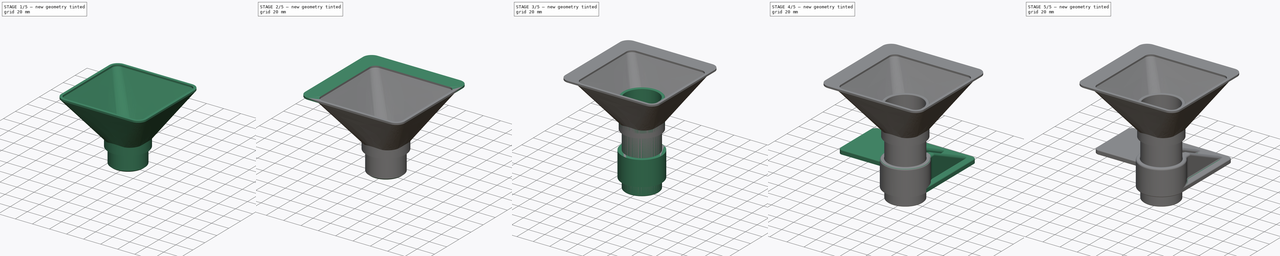
[diagram: build sequence overview — one tinted view per stage of 5, left to right]
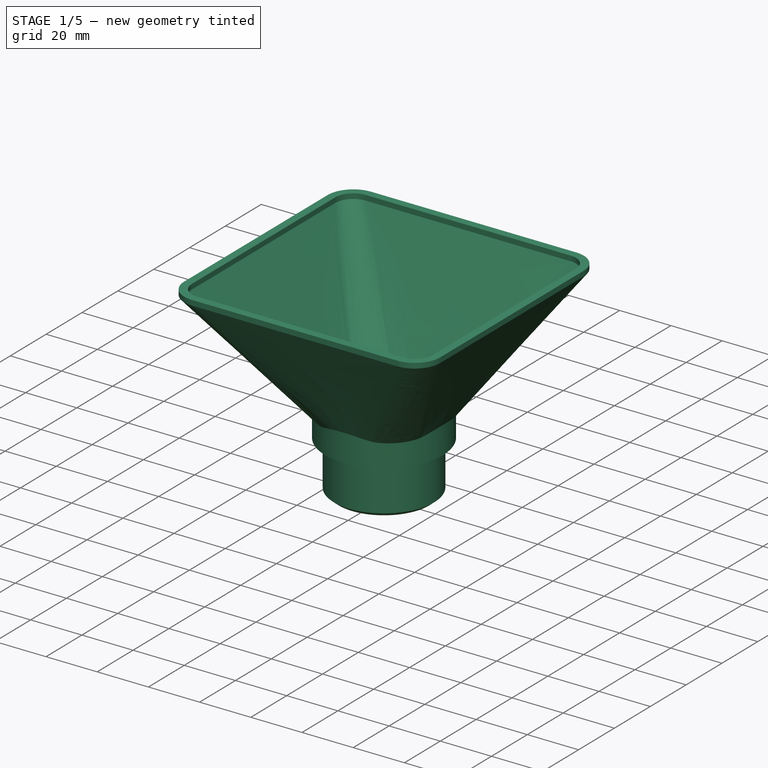
[diagram: stage 1 of 5 — iso view after this stage's code; geometry added in this stage tinted green]
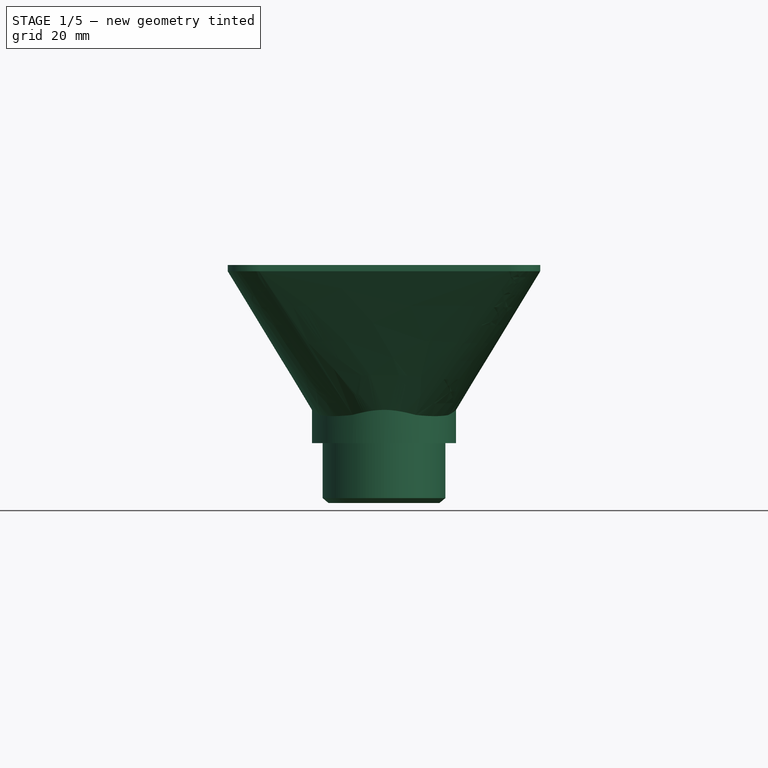
[diagram: stage 1 of 5 — front view after this stage's code; geometry added in this stage tinted green]
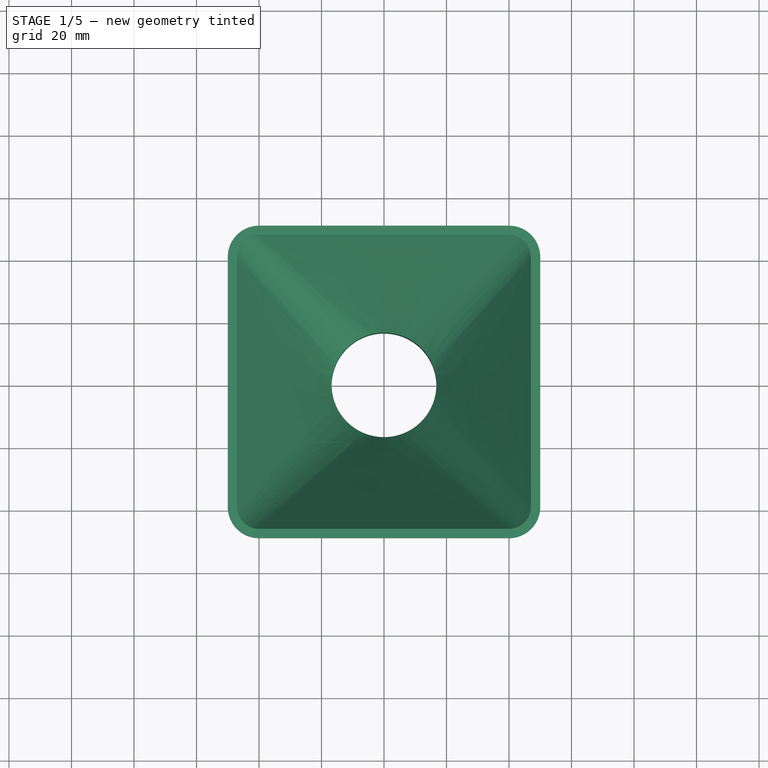
[diagram: stage 1 of 5 — top view after this stage's code; geometry added in this stage tinted green]
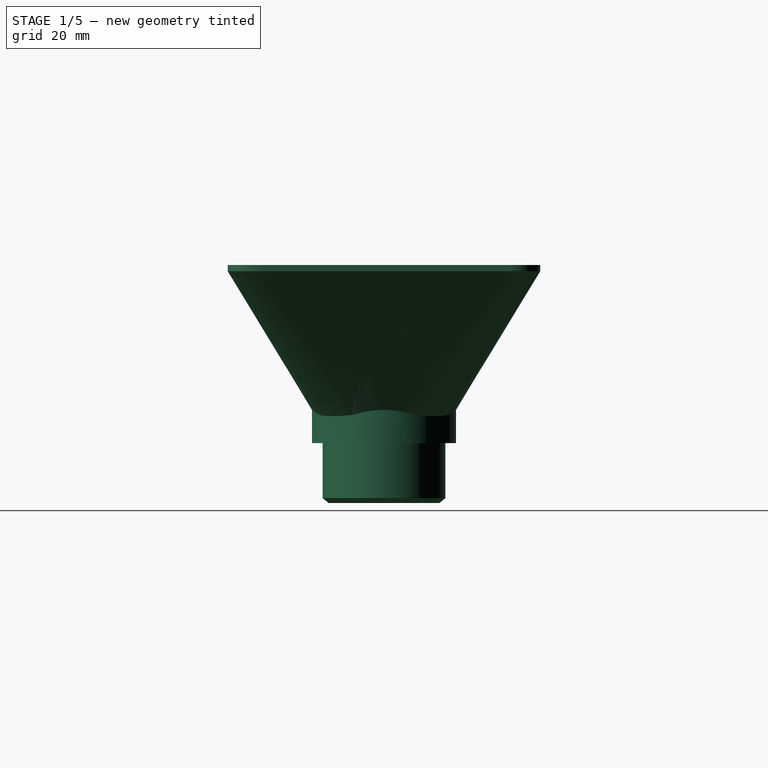
[diagram: stage 1 of 5 — right view after this stage's code; geometry added in this stage tinted green]
FCSTD DOCUMENT  (FreeCAD 2024.408R14555 (Git shallow))
Label: vacuum table
License: All rights reserved
LicenseURL: https://en.wikipedia.org/wiki/All_rights_reserved
objects: Sketcher::SketchObject×18, PartDesign::Pad×9, PartDesign::Body×6, PartDesign::Chamfer×5, PartDesign::Revolution×5, PartDesign::Pocket×4, Sketcher::SketchExport×4, PartDesign::Fillet×3, PartDesign::LinearPattern×2, Part::Part2DObjectPython×2, PartDesign::FeaturePython×2, Spreadsheet::Sheet×1, App::Link×1, PartDesign::AdditiveLoft×1, PartDesign::SubtractiveLoft×1
note: 142 computed .brp shape members not serialized (recipe doc carries the construction recipe); baked Part::Feature solids carry a one-line shape summary decoded from their .brp

FEATURE [PartDesign::Body] Body004  label="inset_tool_base"
  AutoGroupSolids = false
  ClaimAllChildren = false
  ExportMode = 0
  FixShape = 1
  Group = -> [Sketch015,Revolution002,Chamfer005]
  InvalidShape = false
  Origin = -> Origin004
  Placement = pos=(0,0,-7) rot=(0,0,1;0rad)
  Tip = -> Chamfer005
  TreeRank = 127
  ValidateShape = false
  _ExportChildren = -> [Revolution002,Chamfer005]
  _GroupVersion = 1
  expr: Placement.Base.z = -<<dim>>.tool_top_grab_thickness - <<dim>>.tool_inset
FEATURE [App::Link] Link  label="sieve_inset"
  AutoLinkLabel = true
  AutoPlacement = true
  LinkPlacement = pos=(0,0,-7) rot=(0,0,1;0rad)
  LinkedObject = -> Body003
  Placement = pos=(0,0,-7) rot=(0,0,1;0rad)
  SyncGroupVisibility = false
  TreeRank = 133
  _LinkVersion = 1
  expr: Placement.Base.z = -<<dim>>.tool_top_grab_thickness - <<dim>>.tool_inset
FEATURE [Sketcher::SketchObject] Sketch016
  ArcFitTolerance = 1e-06
  AttachmentSupport = -> [YZ_Plane005]
  ExternalBSplineMaxDegree = 5
  ExternalBSplineTolerance = 0.0001
  FixShape = 1
  FullyConstrained = true
  InternalTolerance = 1e-06
  InvalidShape = false
  MakeInternals = false
  MapMode = 5
  Placement = pos=(0,0,0) rot=(0.57735,0.57735,0.57735;2.0944rad)
  Support = -> [YZ_Plane005]
  TreeRank = 146
  ValidateShape = false
  expr: Constraints[13] = <<dim>>.tool_base_chamfer
  expr: Constraints[6] = <<dim>>.tool_d / 2
  expr: Constraints[7] = <<dim>>.tool_mount_fillet_angle
  expr: Constraints[8] = <<dim>>.inner_d_low / 2
  expr: Constraints[9] = <<dim>>.tool_mount_length
  sketch-geometry (7):
    g0: LineSegment [constr] StartX=16.75 StartY=-25 StartZ=0 EndX=19.625 EndY=-22.5876 EndZ=0
    g1: LineSegment StartX=19.625 StartY=-22.5876 StartZ=0 EndX=19.625 EndY=0 EndZ=0
    g2: LineSegment StartX=19.625 StartY=0 StartZ=0 EndX=16.75 EndY=0 EndZ=0
    g3: LineSegment [constr] StartX=16.75 StartY=0 StartZ=0 EndX=16.75 EndY=-25 EndZ=0
    g4: LineSegment StartX=16.75 StartY=-24.1609 StartZ=0 EndX=17.75 EndY=-24.1609 EndZ=0
    g5: LineSegment StartX=17.75 StartY=-24.1609 StartZ=0 EndX=19.625 EndY=-22.5876 EndZ=0
    g6: LineSegment StartX=16.75 StartY=-24.1609 StartZ=0 EndX=16.75 EndY=0 EndZ=0
  constraints (20):
    c: Coincident(g0,g1)
    c: Vertical(g1)
    c: Horizontal(g2)
    c: Coincident(g2,g3)
    c: Coincident(g3,g0)
    c: Vertical(g3)
    c: DistanceX(g0) = 19.625
    c: Angle(g0) = 0.698132
    c: DistanceX(g0) = 16.75
    c: DistanceY(g0,g1) = 25
    c: PointOnObject(g4,g3)
    c: PointOnObject(g4,g0)
    c: Horizontal(g4)
    c: DistanceX(g4,g4) = 1
    c: Coincident(g5,g4)
    c: Coincident(g5,g1)
    c: Coincident(g6,g4)
    c: Coincident(g6,g2)
    c: Horizontal(g-1,g2)
    c: Coincident(g1,g2)
FEATURE [PartDesign::Revolution] Revolution003
  AddSubType = 0
  Angle = 360
  Axis = (-2e-16,3e-16,1)
  Base = (0,0,0)
  ClaimChildren = false
  Fit = 0
  FitJoin = 0
  FixShape = 1
  InnerFit = 0
  InnerFitJoin = 0
  InvalidShape = false
  Linearize = true
  NewSolid = false
  Profile = -> Sketch016
  ReferenceAxis = -> Sketch016 [V_Axis]
  Refine = true
  Reversed = true
  Suppress = false
  TreeRank = 147
  ValidateShape = false
  _ProfileBasedVersion = 1
FEATURE [Sketcher::SketchObject] Sketch020
  ArcFitTolerance = 1e-06
  AttachmentSupport = -> [YZ_Plane005]
  ExternalBSplineMaxDegree = 5
  ExternalBSplineTolerance = 0.0001
  FixShape = 1
  FullyConstrained = true
  InternalTolerance = 1e-06
  InvalidShape = false
  MakeInternals = false
  MapMode = 5
  Placement = pos=(0,0,0) rot=(0.57735,0.57735,0.57735;2.0944rad)
  Support = -> [YZ_Plane005]
  TreeRank = 175
  ValidateShape = false
  expr: Constraints[10] = <<dim>>.tool_mount_length
  expr: Constraints[17] = <<dim>>.tool_base_chamfer
  expr: Constraints[22] = <<dim>>.tool_top_grab_thickness
  expr: Constraints[25] = <<dim>>.outer_d_flange / 2
  expr: Constraints[6] = <<dim>>.tool_d / 2
  expr: Constraints[7] = <<dim>>.tool_mount_fillet_angle
  expr: Constraints[8] = <<dim>>.inner_d_low / 2
  sketch-geometry (11):
    g0: LineSegment [constr] StartX=16.75 StartY=-30 StartZ=0 EndX=19.625 EndY=-27.5876 EndZ=0
    g1: LineSegment [constr] StartX=19.625 StartY=-27.5876 StartZ=0 EndX=19.625 EndY=-5 EndZ=0
    g2: LineSegment StartX=23.05 StartY=0 StartZ=0 EndX=16.75 EndY=0 EndZ=0
    g3: LineSegment [constr] StartX=16.75 StartY=0 StartZ=0 EndX=16.75 EndY=-30 EndZ=0
    g4: LineSegment StartX=19.625 StartY=-5 StartZ=0 EndX=23.05 EndY=-5 EndZ=0
    g5: LineSegment StartX=23.05 StartY=0 StartZ=0 EndX=23.05 EndY=-5 EndZ=0
    g6: LineSegment [constr] StartX=16.75 StartY=-29.1609 StartZ=0 EndX=17.75 EndY=-29.1609 EndZ=0
    g7: LineSegment [constr] StartX=17.75 StartY=-29.1609 StartZ=0 EndX=19.625 EndY=-27.5876 EndZ=0
    g8: LineSegment [constr] StartX=16.75 StartY=-29.1609 StartZ=0 EndX=16.75 EndY=0 EndZ=0
    g9: LineSegment StartX=19.625 StartY=-5 StartZ=0 EndX=16.75 EndY=-5 EndZ=0
    g10: LineSegment StartX=16.75 StartY=-5 StartZ=0 EndX=16.75 EndY=0 EndZ=0
  constraints (31):
    c: Coincident(g0,g1)
    c: Vertical(g1)
    c: Horizontal(g2)
    c: Coincident(g2,g3)
    c: Coincident(g3,g0)
    c: Vertical(g3)
    c: DistanceX(g0) = 19.625
    c: Angle(g0) = 0.698132
    c: DistanceX(g0) = 16.75
    c: Coincident(g4,g1)
    c: DistanceY(g0,g1) = 25
    c: Coincident(g5,g2)
    c: Coincident(g5,g4)
    c: Vertical(g5)
    c: PointOnObject(g6,g3)
    c: PointOnObject(g6,g0)
    c: Horizontal(g6)
    c: DistanceX(g6,g6) = 1
    c: Coincident(g7,g6)
    c: Coincident(g7,g1)
    c: Coincident(g8,g6)
    c: Coincident(g8,g2)
    c: DistanceY(g1,g2) = 5
    c: Horizontal(g-1,g2)
    c: Horizontal(g4)
    c: DistanceX(g2) = 23.05
    c: Coincident(g9,g4)
    c: PointOnObject(g9,g3)
    c: Horizontal(g9)
    c: Coincident(g10,g9)
    c: Coincident(g10,g2)
FEATURE [PartDesign::Body] Body005  label="large_tool"
  AutoGroupSolids = false
  ClaimAllChildren = false
  ExportMode = 0
  FixShape = 1
  Group = -> [Sketch016,Revolution003,Sketch017,Sketch018,Export,Export002,Loft,Export003,Export004,Sketch019,Sketch020,Revolution004,Pad006,Loft001,Pad007,Pad008]
  InvalidShape = false
  Origin = -> Origin005
  Tip = -> Pad008
  TreeRank = 145
  ValidateShape = false
  _ExportChildren = -> [Revolution003,Sketch017,Sketch018,Loft,Revolution004,Pad006,Loft001,Pad007,Pad008]
  _GroupVersion = 1
  expr: Placement.Base.z = 0
FEATURE [Sketcher::SketchObject] Sketch017
  ArcFitTolerance = 1e-06
  AttachmentSupport = -> [XY_Plane005]
  Exports = -> [Export,Export003]
  ExternalBSplineMaxDegree = 5
  ExternalBSplineTolerance = 0.0001
  ExternalGeometry = -> [Revolution003]
  FixShape = 1
  FullyConstrained = true
  InternalTolerance = 1e-06
  InvalidShape = false
  MakeInternals = false
  MapMode = 5
  Support = -> [XY_Plane005]
  TreeRank = 162
  ValidateShape = false
  sketch-geometry (34):
    g0: LineSegment [constr] StartX=-6.40995 StartY=15.475 StartZ=0 EndX=-15.475 EndY=6.40995 EndZ=0
    g1: LineSegment [constr] StartX=-15.475 StartY=6.40995 StartZ=0 EndX=-15.475 EndY=-6.40995 EndZ=0
    g2: LineSegment [constr] StartX=-15.475 StartY=-6.40995 StartZ=0 EndX=-6.40995 EndY=-15.475 EndZ=0
    g3: LineSegment [constr] StartX=-6.40995 StartY=-15.475 StartZ=0 EndX=6.40995 EndY=-15.475 EndZ=0
    g4: LineSegment [constr] StartX=6.40995 StartY=-15.475 StartZ=0 EndX=15.475 EndY=-6.40995 EndZ=0
    g5: LineSegment [constr] StartX=15.475 StartY=-6.40995 StartZ=0 EndX=15.475 EndY=6.40995 EndZ=0
    g6: LineSegment [constr] StartX=15.475 StartY=6.40995 StartZ=0 EndX=6.40995 EndY=15.475 EndZ=0
    g7: LineSegment [constr] StartX=6.40995 StartY=15.475 StartZ=0 EndX=-6.40995 EndY=15.475 EndZ=0
    g8: Circle [constr] CenterX=0 CenterY=0 CenterZ=0 NormalX=0 NormalY=0 NormalZ=1 AngleXU=0 Radius=16.75
    g9: LineSegment [constr] StartX=-7.51016 StartY=18.1311 StartZ=0 EndX=-18.1311 EndY=7.51016 EndZ=0
    g10: LineSegment [constr] StartX=-18.1311 StartY=7.51016 StartZ=0 EndX=-18.1311 EndY=-7.51016 EndZ=0
    g11: LineSegment [constr] StartX=-18.1311 StartY=-7.51016 StartZ=0 EndX=-7.51016 EndY=-18.1311 EndZ=0
    g12: LineSegment [constr] StartX=-7.51016 StartY=-18.1311 StartZ=0 EndX=7.51016 EndY=-18.1311 EndZ=0
    g13: LineSegment [constr] StartX=7.51016 StartY=-18.1311 StartZ=0 EndX=18.1311 EndY=-7.51016 EndZ=0
    g14: LineSegment [constr] StartX=18.1311 StartY=-7.51016 StartZ=0 EndX=18.1311 EndY=7.51016 EndZ=0
    g15: LineSegment [constr] StartX=18.1311 StartY=7.51016 StartZ=0 EndX=7.51016 EndY=18.1311 EndZ=0
    g16: LineSegment [constr] StartX=7.51016 StartY=18.1311 StartZ=0 EndX=-7.51016 EndY=18.1311 EndZ=0
    g17: Circle [constr] CenterX=0 CenterY=0 CenterZ=0 NormalX=0 NormalY=0 NormalZ=1 AngleXU=0 Radius=19.625
    g18: ArcOfCircle CenterX=9.6e-15 CenterY=-9.9e-15 CenterZ=0 NormalX=0 NormalY=0 NormalZ=1 AngleXU=0 Radius=16.75 StartAngle=1.1781 EndAngle=1.9635
    g19: ArcOfCircle CenterX=-1.7e-15 CenterY=-3.4e-14 CenterZ=0 NormalX=0 NormalY=0 NormalZ=1 AngleXU=0 Radius=16.75 StartAngle=0.392699 EndAngle=1.1781
    g20: ArcOfCircle CenterX=-2.56e-14 CenterY=-1.26e-14 CenterZ=0 NormalX=0 NormalY=0 NormalZ=1 AngleXU=0 Radius=16.75 StartAngle=5.89049 EndAngle=6.67588
    g21: ArcOfCircle CenterX=-1.95e-14 CenterY=1.69e-14 CenterZ=0 NormalX=0 NormalY=0 NormalZ=1 AngleXU=0 Radius=16.75 StartAngle=5.10509 EndAngle=5.89049
    g22: ArcOfCircle CenterX=-4.2e-15 CenterY=2.63e-14 CenterZ=0 NormalX=0 NormalY=0 NormalZ=1 AngleXU=0 Radius=16.75 StartAngle=4.31969 EndAngle=5.10509
    g23: ArcOfCircle CenterX=1.86e-14 CenterY=1.57e-14 CenterZ=0 NormalX=0 NormalY=0 NormalZ=1 AngleXU=0 Radius=16.75 StartAngle=3.53429 EndAngle=4.31969
    g24: ArcOfCircle CenterX=2.83e-14 CenterY=-6.09e-14 CenterZ=0 NormalX=0 NormalY=0 NormalZ=1 AngleXU=0 Radius=16.75 StartAngle=2.74889 EndAngle=3.53429
    g25: ArcOfCircle CenterX=-1.03e-14 CenterY=-4.96e-14 CenterZ=0 NormalX=0 NormalY=0 NormalZ=1 AngleXU=0 Radius=16.75 StartAngle=1.9635 EndAngle=2.74889
    g26: ArcOfCircle CenterX=-4.84e-14 CenterY=1.36e-14 CenterZ=0 NormalX=0 NormalY=0 NormalZ=1 AngleXU=0 Radius=19.625 StartAngle=1.1781 EndAngle=1.9635
    g27: ArcOfCircle CenterX=-9.42e-14 CenterY=2.89e-14 CenterZ=0 NormalX=0 NormalY=0 NormalZ=1 AngleXU=0 Radius=19.625 StartAngle=0.392699 EndAngle=1.1781
    g28: ArcOfCircle CenterX=-2e-15 CenterY=-1.7e-15 CenterZ=0 NormalX=0 NormalY=0 NormalZ=1 AngleXU=0 Radius=19.625 StartAngle=5.89049 EndAngle=6.67588
    g29: ArcOfCircle CenterX=2.4e-15 CenterY=2.5e-15 CenterZ=0 NormalX=0 NormalY=0 NormalZ=1 AngleXU=0 Radius=19.625 StartAngle=5.10509 EndAngle=5.89049
    g30: ArcOfCircle CenterX=-8e-16 CenterY=1.4e-15 CenterZ=0 NormalX=0 NormalY=0 NormalZ=1 AngleXU=0 Radius=19.625 StartAngle=4.31969 EndAngle=5.10509
    g31: ArcOfCircle CenterX=1.6e-15 CenterY=-1.8e-15 CenterZ=0 NormalX=0 NormalY=0 NormalZ=1 AngleXU=0 Radius=19.625 StartAngle=3.53429 EndAngle=4.31969
    g32: ArcOfCircle CenterX=1.5e-15 CenterY=-4.3e-15 CenterZ=0 NormalX=0 NormalY=0 NormalZ=1 AngleXU=0 Radius=19.625 StartAngle=2.74889 EndAngle=3.53429
    g33: ArcOfCircle CenterX=3.6e-15 CenterY=0 CenterZ=0 NormalX=0 NormalY=0 NormalZ=1 AngleXU=0 Radius=19.625 StartAngle=1.9635 EndAngle=2.74889
  constraints (89):
    c: Coincident(g0,g1)
    c: Coincident(g1,g2)
    c: Coincident(g2,g3)
    c: Coincident(g3,g4)
    c: Coincident(g4,g5)
    c: Coincident(g5,g6)
    c: Coincident(g6,g7)
    c: Coincident(g7,g0)
    c: Equal(g0, g1-g7) x7
    c: PointOnObject(g0,g8)
    c: PointOnObject(g1,g8)
    c: PointOnObject(g2,g8)
    c: PointOnObject(g3,g8)
    c: PointOnObject(g4,g8)
    c: PointOnObject(g5,g8)
    c: PointOnObject(g6,g8)
    c: PointOnObject(g7,g8)
    c: Coincident(g8,g-4)
    c: PointOnObject(g7,g-3)
    c: Coincident(g9,g10)
    c: Coincident(g10,g11)
    c: Coincident(g11,g12)
    c: Coincident(g12,g13)
    c: Coincident(g13,g14)
    c: Coincident(g14,g15)
    c: Coincident(g15,g16)
    c: Coincident(g16,g9)
    c: Equal(g9, g10-g16) x7
    c: PointOnObject(g9,g17)
    c: PointOnObject(g10,g17)
    c: PointOnObject(g11,g17)
    c: PointOnObject(g12,g17)
    c: PointOnObject(g13,g17)
    c: PointOnObject(g14,g17)
    c: PointOnObject(g15,g17)
    c: PointOnObject(g16,g17)
    c: Coincident(g17,g-4)
    c: PointOnObject(g16,g-4)
    c: Horizontal(g7)
    c: Horizontal(g16)
    c: Coincident(g18,g0)
    c: Coincident(g18,g6)
    c: Coincident(g19,g18)
    c: Coincident(g19,g5)
    c: Coincident(g20,g19)
    c: Coincident(g20,g4)
    c: Coincident(g21,g20)
    c: Coincident(g21,g3)
    c: Coincident(g22,g21)
    c: Coincident(g22,g2)
    c: Coincident(g23,g1)
    c: Coincident(g23,g22)
    c: Coincident(g24,g0)
    c: Coincident(g24,g23)
    c: Coincident(g25,g18)
    c: Coincident(g25,g24)
    c: Equal(g18,g19)
    c: Equal(g19,g20)
    c: Equal(g20,g21)
    c: Equal(g21,g22)
    c: Equal(g22,g23)
    c: Equal(g23,g24)
    c: Equal(g24,g25)
    c: Equal(g25,g8)
    c: Coincident(g26,g9)
    c: Coincident(g26,g15)
    c: Coincident(g27,g26)
    c: Coincident(g27,g14)
    c: Coincident(g28,g27)
    c: Coincident(g28,g13)
    c: Coincident(g29,g28)
    c: Coincident(g29,g12)
    c: Coincident(g30,g11)
    c: Coincident(g30,g29)
    c: Coincident(g31,g10)
    c: Coincident(g31,g30)
    c: Coincident(g32,g9)
    c: Coincident(g32,g31)
    c: Coincident(g33,g26)
    c: PointOnObject(g33,g32)
    c: Equal(g26,g27)
    c: Equal(g27,g28)
    c: Equal(g28,g29)
    c: Equal(g29,g30)
    c: Equal(g30,g31)
    c: Equal(g31,g32)
    c: Equal(g32,g33)
    c: Equal(g33,g17)
    c: Horizontal(g33,g27)
FEATURE [Sketcher::SketchObject] Sketch018
  ArcFitTolerance = 1e-06
  AttachmentOffset = pos=(0,0,50) rot=(0,0,1;0rad)
  AttachmentSupport = -> [XY_Plane005]
  Exports = -> [Export002,Export004]
  ExternalBSplineMaxDegree = 5
  ExternalBSplineTolerance = 0.0001
  FixShape = 1
  FullyConstrained = true
  InternalTolerance = 1e-06
  InvalidShape = false
  MakeInternals = false
  MapMode = 5
  Placement = pos=(0,0,50) rot=(0,0,1;0rad)
  Support = -> [XY_Plane005]
  TreeRank = 178
  ValidateShape = false
  expr: AttachmentOffset.Base.z = <<dim>>.large_tool_length
  expr: Constraints[26] = <<dim>>.large_tool_fillet
  expr: Constraints[53] = <<dim>>.large_tool_top_wall
  expr: Constraints[6] = <<dim>>.large_tool_side
  sketch-geometry (26):
    g0: LineSegment StartX=-50 StartY=40 StartZ=0 EndX=-50 EndY=-40 EndZ=0
    g1: LineSegment StartX=-40 StartY=-50 StartZ=0 EndX=40 EndY=-50 EndZ=0
    g2: LineSegment StartX=50 StartY=-40 StartZ=0 EndX=50 EndY=40 EndZ=0
    g3: LineSegment StartX=40 StartY=50 StartZ=0 EndX=-40 EndY=50 EndZ=0
    g4: GeomPoint [constr] X=0 Y=0 Z=0
    g5: ArcOfCircle CenterX=40 CenterY=40 CenterZ=0 NormalX=0 NormalY=0 NormalZ=1 AngleXU=0 Radius=10 StartAngle=2e-16 EndAngle=1.5708
    g6: GeomPoint [constr] X=50 Y=50 Z=0
    g7: ArcOfCircle CenterX=40 CenterY=-40 CenterZ=0 NormalX=0 NormalY=0 NormalZ=1 AngleXU=0 Radius=10 StartAngle=4.71239 EndAngle=6.28319
    g8: GeomPoint [constr] X=50 Y=-50 Z=0
    g9: ArcOfCircle CenterX=-40 CenterY=-40 CenterZ=0 NormalX=0 NormalY=0 NormalZ=1 AngleXU=0 Radius=10 StartAngle=3.14159 EndAngle=4.71239
    g10: GeomPoint [constr] X=-50 Y=-50 Z=0
    g11: ArcOfCircle CenterX=-40 CenterY=40 CenterZ=0 NormalX=0 NormalY=0 NormalZ=1 AngleXU=0 Radius=10 StartAngle=1.5708 EndAngle=3.14159
    g12: GeomPoint [constr] X=-50 Y=50 Z=0
    g13: LineSegment StartX=-47 StartY=40 StartZ=0 EndX=-47 EndY=-40 EndZ=0
    g14: LineSegment StartX=-40 StartY=-47 StartZ=0 EndX=40 EndY=-47 EndZ=0
    g15: LineSegment StartX=47 StartY=-40 StartZ=0 EndX=47 EndY=40 EndZ=0
    g16: LineSegment StartX=40 StartY=47 StartZ=0 EndX=-40 EndY=47 EndZ=0
    g17: GeomPoint [constr] X=0 Y=0 Z=0
    g18: ArcOfCircle CenterX=40 CenterY=40 CenterZ=0 NormalX=0 NormalY=0 NormalZ=1 AngleXU=0 Radius=7 StartAngle=3e-16 EndAngle=1.5708
    g19: GeomPoint [constr] X=47 Y=47 Z=0
    g20: ArcOfCircle CenterX=40 CenterY=-40 CenterZ=0 NormalX=0 NormalY=0 NormalZ=1 AngleXU=0 Radius=7 StartAngle=4.71239 EndAngle=6.28319
    g21: GeomPoint [constr] X=47 Y=-47 Z=0
    g22: ArcOfCircle CenterX=-40 CenterY=-40 CenterZ=0 NormalX=0 NormalY=0 NormalZ=1 AngleXU=0 Radius=7 StartAngle=3.14159 EndAngle=4.71239
    g23: GeomPoint [constr] X=-47 Y=-47 Z=0
    g24: ArcOfCircle CenterX=-40 CenterY=40 CenterZ=0 NormalX=0 NormalY=0 NormalZ=1 AngleXU=0 Radius=7 StartAngle=1.5708 EndAngle=3.14159
    g25: GeomPoint [constr] X=-47 Y=47 Z=0
  constraints (55):
    c: Horizontal(g1)
    c: Horizontal(g3)
    c: Vertical(g0)
    c: Vertical(g2)
    c: Symmetric(g8,g12,g4)
    c: Coincident(g4,g-1)
    c: DistanceY(g8,g6) = 100
    c: PointOnObject(g6,g3)
    c: PointOnObject(g6,g2)
    c: Tangent(g3,g5) = -1.5708
    c: Tangent(g2,g5) = -1.5708
    c: PointOnObject(g8,g2)
    c: PointOnObject(g8,g1)
    c: Tangent(g2,g7) = -1.5708
    c: Tangent(g1,g7) = -1.5708
    c: PointOnObject(g10,g1)
    c: PointOnObject(g10,g0)
    c: Tangent(g1,g9) = -1.5708
    c: Tangent(g0,g9) = -1.5708
    c: PointOnObject(g12,g0)
    c: PointOnObject(g12,g3)
    c: Tangent(g0,g11) = -1.5708
    c: Tangent(g3,g11) = -1.5708
    c: Equal(g9,g7)
    c: Equal(g9,g5)
    c: Equal(g9,g11)
    c: Radius(g9) = 10
    c: Horizontal(g14)
    c: Horizontal(g16)
    c: Vertical(g13)
    c: Vertical(g15)
    c: Symmetric(g21,g25,g17)
    c: Coincident(g17,g4)
    c: PointOnObject(g19,g16)
    c: PointOnObject(g19,g15)
    c: Tangent(g16,g18) = -1.5708
    c: Tangent(g15,g18) = -1.5708
    c: PointOnObject(g21,g15)
    c: PointOnObject(g21,g14)
    c: Tangent(g15,g20) = -1.5708
    c: Tangent(g14,g20) = -1.5708
    c: PointOnObject(g23,g14)
    c: PointOnObject(g23,g13)
    c: Tangent(g14,g22) = -1.5708
    c: Tangent(g13,g22) = -1.5708
    c: PointOnObject(g25,g13)
    c: PointOnObject(g25,g16)
    c: Tangent(g13,g24) = -1.5708
    c: Tangent(g16,g24) = -1.5708
    c: Equal(g24,g22)
    c: Equal(g22,g20)
    c: Equal(g20,g18)
    c: Coincident(g18,g5)
    c: DistanceX(g15,g2) = 3
    c: Equal(g3,g2)
FEATURE [Sketcher::SketchExport] Export
  Base = -> Sketch017
  BaseRefs = -> Sketch017 [edge27,edge28,edge29,edge30,edge31,edge32,edge33,edge34]
  FixShape = 1
  InvalidShape = false
  Refs = ;g38.edge27 | ;g39.edge28 | ;g40.edge29 | ;g41.edge30 | ;g42.edge31 | ;g43.edge32 | ;g44.edge33 | ;g45.edge34
  SyncPlacement = true
  TreeRank = 164
  ValidateShape = false
FEATURE [Sketcher::SketchExport] Export002
  Base = -> Sketch018
  BaseRefs = -> Sketch018 [edge4,edge6,edge3,edge8,edge2,edge10,edge1,edge12]
  FixShape = 1
  InvalidShape = false
  Placement = pos=(0,0,50) rot=(0,0,1;0rad)
  Refs = ;g4.edge4 | ;g6.edge6 | ;g3.edge3 | ;g8.edge8 | ;g2.edge2 | ;g10.edge10 | ;g1.edge1 | ;g12.edge12
  SyncPlacement = true
  TreeRank = 166
  ValidateShape = false
FEATURE [PartDesign::AdditiveLoft] Loft
  AddSubType = 0
  BaseFeature = -> Revolution003
  ClaimChildren = false
  Closed = false
  Fit = 0
  FitJoin = 0
  FixShape = 1
  InnerFit = 0
  InnerFitJoin = 0
  InvalidShape = false
  Linearize = true
  MaxDegree = 5
  NewSolid = false
  Profile = -> Export
  Refine = true
  Ruled = false
  Sections = -> [Export002]
  SplitProfile = false
  Suppress = false
  TreeRank = 168
  ValidateShape = false
  _ProfileBasedVersion = 1
FEATURE [Sketcher::SketchExport] Export003
  Base = -> Sketch017
  BaseRefs = -> Sketch017 [edge19,edge20,edge21,edge22,edge23,edge24,edge25,edge26]
  FixShape = 1
  InvalidShape = false
  Refs = ;g30.edge19 | ;g31.edge20 | ;g32.edge21 | ;g33.edge22 | ;g34.edge23 | ;g35.edge24 | ;g36.edge25 | ;g37.edge26
  SyncPlacement = true
  TreeRank = 169
  ValidateShape = false
FEATURE [Sketcher::SketchExport] Export004
  Base = -> Sketch018
  BaseRefs = -> Sketch018 [edge17,edge19,edge16,edge21,edge15,edge23,edge14,edge25]
  FixShape = 1
  InvalidShape = false
  Placement = pos=(0,0,50) rot=(0,0,1;0rad)
  Refs = ;g17.edge17 | ;g19.edge19 | ;g16.edge16 | ;g21.edge21 | ;g15.edge15 | ;g23.edge23 | ;g14.edge14 | ;g25.edge25
  SyncPlacement = true
  TreeRank = 170
  ValidateShape = false
FEATURE [Sketcher::SketchObject] Sketch019
  ArcFitTolerance = 1e-06
  AttachmentSupport = -> [Sketch018]
  ExternalBSplineMaxDegree = 5
  ExternalBSplineTolerance = 0.0001
  ExternalGeometry = -> [Sketch018]
  FixShape = 1
  FullyConstrained = true
  InternalTolerance = 1e-06
  InvalidShape = false
  MakeInternals = false
  MapMode = 5
  Placement = pos=(0,0,50) rot=(0,0,1;0rad)
  Support = -> [Sketch018]
  TreeRank = 180
  ValidateShape = false
  expr: Constraints[21] = <<dim>>.large_tool_side_clamp_size
  sketch-geometry (9):
    g0: ArcOfCircle CenterX=-55 CenterY=55 CenterZ=0 NormalX=0 NormalY=0 NormalZ=1 AngleXU=0 Radius=10 StartAngle=1.5708 EndAngle=3.14159
    g1: ArcOfCircle CenterX=-55 CenterY=-40 CenterZ=0 NormalX=0 NormalY=0 NormalZ=1 AngleXU=0 Radius=10 StartAngle=3.14159 EndAngle=4.71239
    g2: ArcOfCircle CenterX=40 CenterY=55 CenterZ=0 NormalX=0 NormalY=0 NormalZ=1 AngleXU=0 Radius=10 StartAngle=1e-16 EndAngle=1.5708
    g3: LineSegment StartX=-55 StartY=65 StartZ=0 EndX=40 EndY=65 EndZ=0
    g4: LineSegment StartX=-65 StartY=55 StartZ=0 EndX=-65 EndY=-40 EndZ=0
    g5: LineSegment StartX=50 StartY=55 StartZ=0 EndX=50 EndY=40 EndZ=0
    g6: LineSegment StartX=-55 StartY=-50 StartZ=0 EndX=-40 EndY=-50 EndZ=0
    g7: LineSegment StartX=-40 StartY=-50 StartZ=0 EndX=-40 EndY=-47 EndZ=0
    g8: LineSegment StartX=47 StartY=40 StartZ=0 EndX=50 EndY=40 EndZ=0
  constraints (27):
    c: Vertical(g2,g-8)
    c: Vertical(g0,g1)
    c: Horizontal(g1,g-3)
    c: Horizontal(g0,g2)
    c: Coincident(g3,g0)
    c: Coincident(g3,g2)
    c: Horizontal(g3)
    c: Vertical(g2,g2)
    c: Vertical(g0,g0)
    c: Horizontal(g0,g0)
    c: Horizontal(g1,g1)
    c: Coincident(g4,g0)
    c: Coincident(g4,g1)
    c: Vertical(g4)
    c: Equal(g4,g3)
    c: Vertical(g1,g1)
    c: Horizontal(g2,g2)
    c: Coincident(g5,g2)
    c: Coincident(g6,g1)
    c: Coincident(g6,g-3)
    c: Coincident(g5,g-8)
    c: DistanceY(g-8,g2) = 15
    c: Equal(g2,g-8)
    c: Coincident(g7,g6)
    c: Coincident(g7,g-4)
    c: Coincident(g8,g-7)
    c: Coincident(g8,g5)
FEATURE [PartDesign::Revolution] Revolution004
  AddSubType = 0
  Angle = 360
  Axis = (-2e-16,3e-16,1)
  Base = (0,0,0)
  BaseFeature = -> Loft
  ClaimChildren = false
  Fit = 0
  FitJoin = 0
  FixShape = 1
  InnerFit = 0
  InnerFitJoin = 0
  InvalidShape = false
  Linearize = true
  NewSolid = false
  Profile = -> Sketch020
  ReferenceAxis = -> Sketch020 [V_Axis]
  Refine = true
  Reversed = true
  Suppress = false
  TreeRank = 176
  ValidateShape = false
  _ProfileBasedVersion = 1
FEATURE [PartDesign::Pad] Pad006
  AddSubType = 0
  AlongSketchNormal = false
  AutoTaperInnerAngle = true
  BaseFeature = -> Revolution004
  CheckUpToFaceLimits = true
  ClaimChildren = false
  Direction = (-2e-16,3e-16,1)
  Fit = 0
  FitJoin = 0
  FixShape = 1
  InnerFit = 0
  InnerFitJoin = 0
  InvalidShape = false
  Length = 10
  Length2 = 10
  Linearize = true
  NewSolid = false
  Profile = -> Revolution004 [Face6]
  Refine = true
  Suppress = false
  TaperInnerAngle = 0
  TaperInnerAngleRev = 0
  TreeRank = 177
  Type = 0
  ValidateShape = false
  _ProfileBasedVersion = 1
FEATURE [PartDesign::SubtractiveLoft] Loft001
  AddSubType = 1
  BaseFeature = -> Pad006
  ClaimChildren = false
  Closed = false
  Fit = 0
  FitJoin = 0
  FixShape = 1
  InnerFit = 0
  InnerFitJoin = 0
  InvalidShape = false
  Linearize = true
  MaxDegree = 5
  NewSolid = false
  Profile = -> Export003
  Refine = true
  Ruled = false
  Sections = -> [Export004]
  SplitProfile = false
  Suppress = false
  TreeRank = 179
  ValidateShape = false
  _ProfileBasedVersion = 1
FEATURE [PartDesign::Pad] Pad007
  AddSubType = 0
  AlongSketchNormal = false
  AutoTaperInnerAngle = true
  BaseFeature = -> Loft001
  CheckUpToFaceLimits = true
  ClaimChildren = false
  Direction = (0,0,1)
  Fit = 0
  FitJoin = 0
  FixShape = 1
  InnerFit = 0
  InnerFitJoin = 0
  InvalidShape = false
  Length = 2
  Length2 = 10
  Linearize = true
  NewSolid = false
  Profile = -> Loft001 [Face13]
  Refine = true
  Suppress = false
  TaperInnerAngle = 0
  TaperInnerAngleRev = 0
  TreeRank = 181
  Type = 0
  ValidateShape = false
  _ProfileBasedVersion = 1
  expr: Length = <<dim>>.sieve_thickness
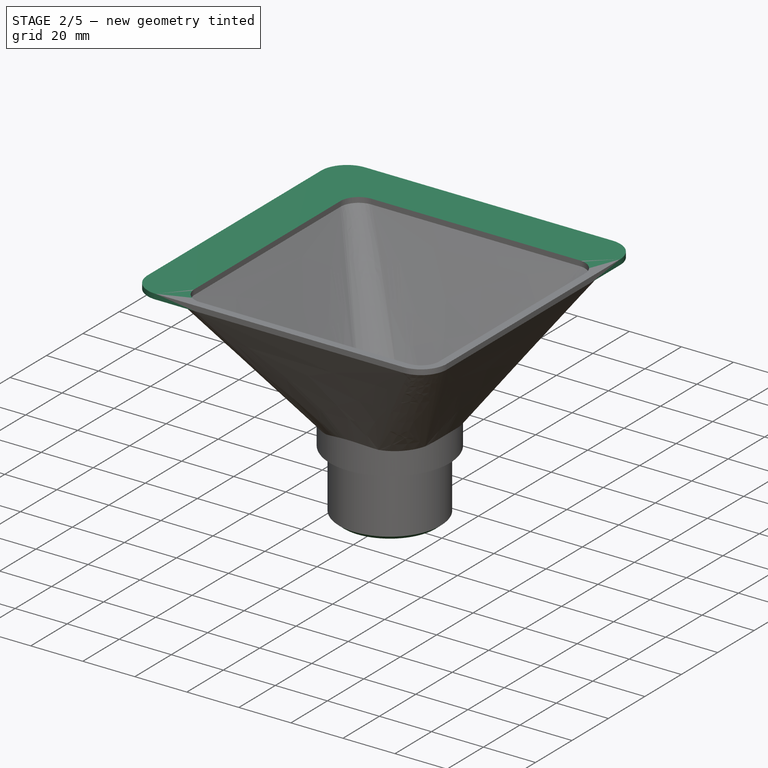
[diagram: stage 2 of 5 — iso view after this stage's code; geometry added in this stage tinted green]
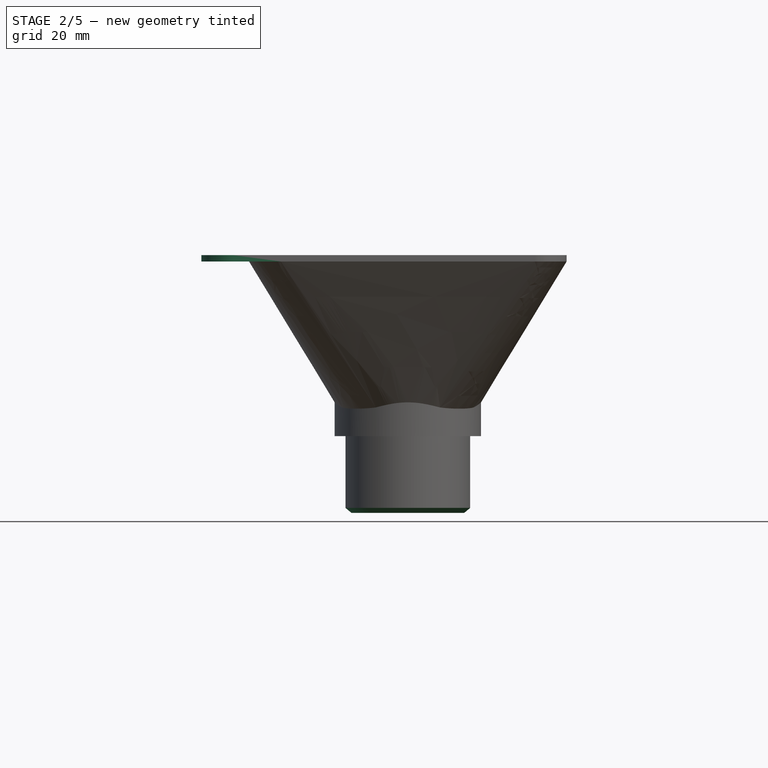
[diagram: stage 2 of 5 — front view after this stage's code; geometry added in this stage tinted green]
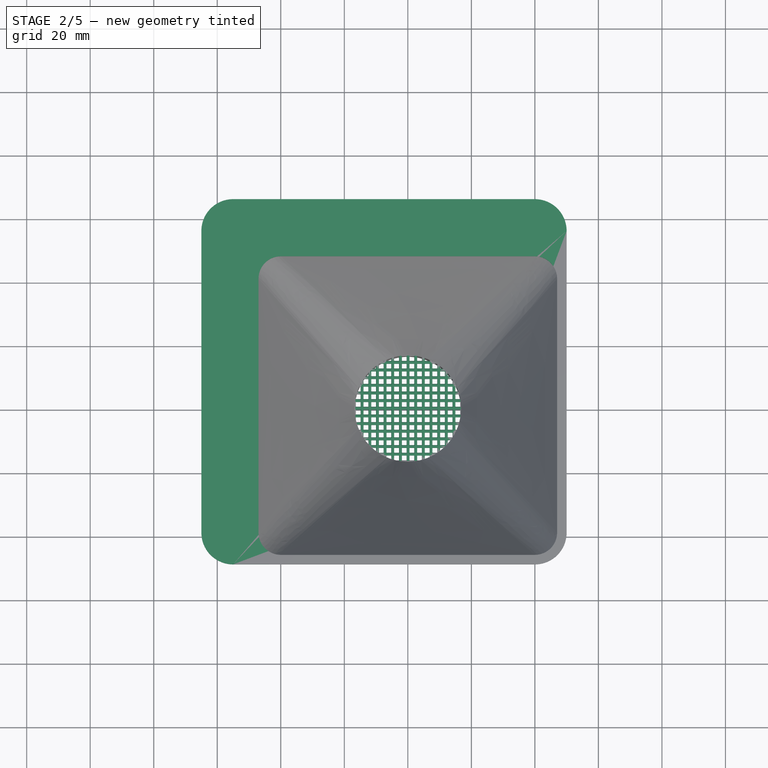
[diagram: stage 2 of 5 — top view after this stage's code; geometry added in this stage tinted green]
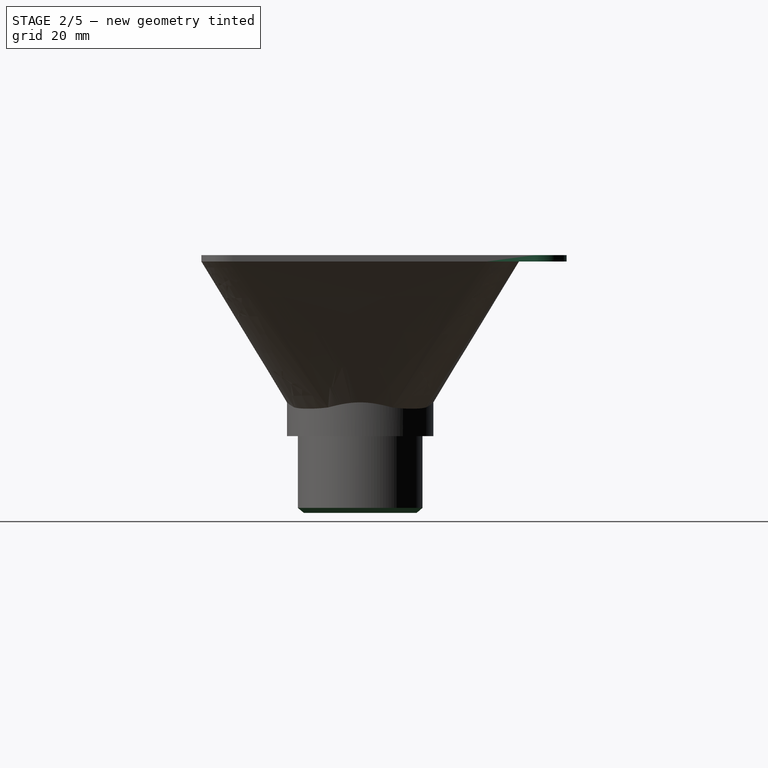
[diagram: stage 2 of 5 — right view after this stage's code; geometry added in this stage tinted green]
FEATURE [PartDesign::Body] Body002  label="adapter"
  AutoGroupSolids = false
  ClaimAllChildren = false
  ExportMode = 0
  FixShape = 1
  Group = -> [Sketch010,Revolution,Chamfer]
  InvalidShape = false
  Origin = -> Origin002
  Placement = pos=(0,0,-35) rot=(0,0,1;0rad)
  Tip = -> Chamfer
  TreeRank = 70
  ValidateShape = false
  _ExportChildren = -> [Revolution,Chamfer]
  _GroupVersion = 1
  expr: Placement.Base.z = -<<dim>>.flange_length - <<dim>>.tool_top_grab_thickness
FEATURE [Sketcher::SketchObject] Sketch
  ArcFitTolerance = 1e-06
  AttachmentSupport = -> [YZ_Plane]
  ExternalBSplineMaxDegree = 5
  ExternalBSplineTolerance = 0.0001
  FixShape = 1
  FullyConstrained = true
  InternalTolerance = 1e-06
  InvalidShape = false
  MakeInternals = false
  MapMode = 5
  Placement = pos=(0,0,0) rot=(0.57735,0.57735,0.57735;2.0944rad)
  Support = -> [YZ_Plane]
  TreeRank = 86
  ValidateShape = false
  expr: Constraints[10] = <<dim>>.tool_mount_length
  expr: Constraints[17] = <<dim>>.tool_base_chamfer
  expr: Constraints[22] = <<dim>>.tool_top_grab_thickness
  expr: Constraints[25] = <<dim>>.outer_d_flange / 2
  expr: Constraints[6] = <<dim>>.tool_d / 2
  expr: Constraints[7] = <<dim>>.tool_mount_fillet_angle
  expr: Constraints[8] = <<dim>>.inner_d_low / 2
  sketch-geometry (9):
    g0: LineSegment [constr] StartX=16.75 StartY=-30 StartZ=0 EndX=19.625 EndY=-27.5876 EndZ=0
    g1: LineSegment StartX=19.625 StartY=-27.5876 StartZ=0 EndX=19.625 EndY=-5 EndZ=0
    g2: LineSegment StartX=23.05 StartY=0 StartZ=0 EndX=16.75 EndY=0 EndZ=0
    g3: LineSegment [constr] StartX=16.75 StartY=0 StartZ=0 EndX=16.75 EndY=-30 EndZ=0
    g4: LineSegment StartX=19.625 StartY=-5 StartZ=0 EndX=23.05 EndY=-5 EndZ=0
    g5: LineSegment StartX=23.05 StartY=0 StartZ=0 EndX=23.05 EndY=-5 EndZ=0
    g6: LineSegment StartX=16.75 StartY=-29.1609 StartZ=0 EndX=17.75 EndY=-29.1609 EndZ=0
    g7: LineSegment StartX=17.75 StartY=-29.1609 StartZ=0 EndX=19.625 EndY=-27.5876 EndZ=0
    g8: LineSegment StartX=16.75 StartY=-29.1609 StartZ=0 EndX=16.75 EndY=0 EndZ=0
  constraints (26):
    c: Coincident(g0,g1)
    c: Vertical(g1)
    c: Horizontal(g2)
    c: Coincident(g2,g3)
    c: Coincident(g3,g0)
    c: Vertical(g3)
    c: DistanceX(g0) = 19.625
    c: Angle(g0) = 0.698132
    c: DistanceX(g0) = 16.75
    c: Coincident(g4,g1)
    c: DistanceY(g0,g1) = 25
    c: Coincident(g5,g2)
    c: Coincident(g5,g4)
    c: Vertical(g5)
    c: PointOnObject(g6,g3)
    c: PointOnObject(g6,g0)
    c: Horizontal(g6)
    c: DistanceX(g6,g6) = 1
    c: Coincident(g7,g6)
    c: Coincident(g7,g1)
    c: Coincident(g8,g6)
    c: Coincident(g8,g2)
    c: DistanceY(g1,g2) = 5
    c: Horizontal(g-1,g2)
    c: Horizontal(g4)
    c: DistanceX(g2) = 23.05
FEATURE [PartDesign::Revolution] Revolution001
  AddSubType = 0
  Angle = 360
  Axis = (-2e-16,3e-16,1)
  Base = (0,0,0)
  ClaimChildren = false
  Fit = 0
  FitJoin = 0
  FixShape = 1
  InnerFit = 0
  InnerFitJoin = 0
  InvalidShape = false
  Linearize = true
  NewSolid = false
  Profile = -> Sketch
  ReferenceAxis = -> Sketch [V_Axis]
  Refine = true
  Reversed = true
  Suppress = false
  TreeRank = 87
  ValidateShape = false
  _ProfileBasedVersion = 1
FEATURE [Sketcher::SketchObject] Sketch011
  ArcFitTolerance = 1e-06
  AttachmentOffset = pos=(-16.8,0,0) rot=(0,0,1;0rad)
  AttachmentSupport = -> [XZ_Plane003]
  ExternalBSplineMaxDegree = 5
  ExternalBSplineTolerance = 0.0001
  FixShape = 1
  FullyConstrained = true
  InternalTolerance = 1e-06
  InvalidShape = false
  MakeInternals = false
  MapMode = 5
  Placement = pos=(-16.8,0,0) rot=(1,0,0;1.5708rad)
  Support = -> [XZ_Plane003]
  TreeRank = 100
  ValidateShape = false
  expr: AttachmentOffset.Base.x = -<<dim>>.hole_offset
  expr: Constraints[20] = <<dim>>.extrusion_width
  expr: Constraints[21] = <<dim>>.sieve_mesh
  expr: Constraints[22] = <<dim>>.sieve_thickness
  sketch-geometry (8):
    g0: LineSegment StartX=-0.25 StartY=0 StartZ=0 EndX=0.25 EndY=0 EndZ=0
    g1: LineSegment StartX=0.25 StartY=0 StartZ=0 EndX=0.45 EndY=-0.2 EndZ=0
    g2: LineSegment StartX=0.45 StartY=-0.2 StartZ=0 EndX=0.45 EndY=-1.8 EndZ=0
    g3: LineSegment StartX=0.45 StartY=-1.8 StartZ=0 EndX=0.25 EndY=-2 EndZ=0
    g4: LineSegment StartX=0.25 StartY=-2 StartZ=0 EndX=-0.25 EndY=-2 EndZ=0
    g5: LineSegment StartX=-0.25 StartY=-2 StartZ=0 EndX=-0.45 EndY=-1.8 EndZ=0
    g6: LineSegment StartX=-0.45 StartY=-1.8 StartZ=0 EndX=-0.45 EndY=-0.2 EndZ=0
    g7: LineSegment StartX=-0.45 StartY=-0.2 StartZ=0 EndX=-0.25 EndY=0 EndZ=0
  constraints (23):
    c: PointOnObject(g0,g-1)
    c: PointOnObject(g0,g-1)
    c: Coincident(g0,g1)
    c: Coincident(g1,g2)
    c: Vertical(g2)
    c: Coincident(g2,g3)
    c: Coincident(g3,g4)
    c: Coincident(g4,g5)
    c: Coincident(g5,g6)
    c: Vertical(g6)
    c: Coincident(g6,g7)
    c: Coincident(g7,g0)
    c: Horizontal(g4)
    c: Parallel(g3,g7)
    c: Parallel(g5,g1)
    c: Perpendicular(g1,g7)
    c: Angle(g3) = -2.35619
    c: Symmetric(g6,g1,g-2)
    c: Equal(g0,g4)
    c: Vertical(g4,g0)
    c: DistanceX(g0,g0) = 0.5
    c: DistanceX(g6,g1) = 0.9
    c: DistanceY(g3,g0) = 2
FEATURE [PartDesign::Pad] Pad
  AddSubType = 0
  AlongSketchNormal = false
  AutoTaperInnerAngle = true
  CheckUpToFaceLimits = true
  ClaimChildren = false
  Direction = (0,-1,2e-16)
  Fit = 0
  FitJoin = 0
  FixShape = 1
  InnerFit = 0
  InnerFitJoin = 0
  InvalidShape = false
  Length = 33.5
  Length2 = 10
  Linearize = true
  Midplane = true
  NewSolid = false
  Profile = -> Sketch011
  ReferenceAxis = -> Sketch011 [N_Axis]
  Refine = true
  Suppress = false
  TaperInnerAngle = 0
  TaperInnerAngleRev = 0
  TreeRank = 101
  Type = 0
  ValidateShape = false
  _ProfileBasedVersion = 1
  expr: Length = <<dim>>.inner_d_low
FEATURE [PartDesign::Body] Body  label="tool_base"
  AutoGroupSolids = false
  ClaimAllChildren = false
  ExportMode = 0
  FixShape = 1
  Group = -> [Sketch,Revolution001,Chamfer004]
  InvalidShape = false
  Origin = -> Origin
  Tip = -> Chamfer004
  TreeRank = 85
  ValidateShape = false
  _ExportChildren = -> [Revolution001,Chamfer004]
  _GroupVersion = 1
FEATURE [Sketcher::SketchObject] Sketch014
  ArcFitTolerance = 1e-06
  AttachmentOffset = pos=(-16.8,0,0) rot=(0,0,1;0rad)
  AttachmentSupport = -> [YZ_Plane003]
  ExternalBSplineMaxDegree = 5
  ExternalBSplineTolerance = 0.0001
  FixShape = 1
  FullyConstrained = true
  InternalTolerance = 1e-06
  InvalidShape = false
  MakeInternals = false
  MapMode = 5
  Placement = pos=(-3.7e-15,-16.8,3.7e-15) rot=(0.57735,0.57735,0.57735;2.0944rad)
  Support = -> [YZ_Plane003]
  TreeRank = 109
  ValidateShape = false
  expr: AttachmentOffset.Base.x = -<<dim>>.hole_offset
  expr: Constraints[20] = <<dim>>.extrusion_width
  expr: Constraints[21] = <<dim>>.sieve_mesh
  expr: Constraints[22] = <<dim>>.sieve_thickness
  sketch-geometry (8):
    g0: LineSegment StartX=-0.25 StartY=0 StartZ=0 EndX=0.25 EndY=0 EndZ=0
    g1: LineSegment StartX=0.25 StartY=0 StartZ=0 EndX=0.45 EndY=-0.2 EndZ=0
    g2: LineSegment StartX=0.45 StartY=-0.2 StartZ=0 EndX=0.45 EndY=-1.8 EndZ=0
    g3: LineSegment StartX=0.45 StartY=-1.8 StartZ=0 EndX=0.25 EndY=-2 EndZ=0
    g4: LineSegment StartX=0.25 StartY=-2 StartZ=0 EndX=-0.25 EndY=-2 EndZ=0
    g5: LineSegment StartX=-0.25 StartY=-2 StartZ=0 EndX=-0.45 EndY=-1.8 EndZ=0
    g6: LineSegment StartX=-0.45 StartY=-1.8 StartZ=0 EndX=-0.45 EndY=-0.2 EndZ=0
    g7: LineSegment StartX=-0.45 StartY=-0.2 StartZ=0 EndX=-0.25 EndY=0 EndZ=0
  constraints (23):
    c: PointOnObject(g0,g-1)
    c: PointOnObject(g0,g-1)
    c: Coincident(g0,g1)
    c: Coincident(g1,g2)
    c: Vertical(g2)
    c: Coincident(g2,g3)
    c: Coincident(g3,g4)
    c: Coincident(g4,g5)
    c: Coincident(g5,g6)
    c: Vertical(g6)
    c: Coincident(g6,g7)
    c: Coincident(g7,g0)
    c: Horizontal(g4)
    c: Parallel(g3,g7)
    c: Parallel(g5,g1)
    c: Perpendicular(g1,g7)
    c: Angle(g3) = -2.35619
    c: Symmetric(g6,g1,g-2)
    c: Equal(g0,g4)
    c: Vertical(g4,g0)
    c: DistanceX(g0,g0) = 0.5
    c: DistanceX(g6,g1) = 0.9
    c: DistanceY(g3,g0) = 2
FEATURE [PartDesign::Pad] Pad005
  AddSubType = 0
  AlongSketchNormal = false
  AutoTaperInnerAngle = true
  BaseFeature = -> Pad
  CheckUpToFaceLimits = true
  ClaimChildren = false
  Direction = (1,-2e-16,3e-16)
  Fit = 0
  FitJoin = 0
  FixShape = 1
  InnerFit = 0
  InnerFitJoin = 0
  InvalidShape = false
  Length = 33.5
  Length2 = 10
  Linearize = true
  Midplane = true
  NewSolid = false
  Profile = -> Sketch014
  ReferenceAxis = -> Sketch014 [N_Axis]
  Refine = true
  Suppress = false
  TaperInnerAngle = 0
  TaperInnerAngleRev = 0
  TreeRank = 110
  Type = 0
  ValidateShape = false
  _ProfileBasedVersion = 1
  expr: Length = <<Pad>>.Length
FEATURE [Part::Part2DObjectPython] LinearArray  # Draft 2D object (typed FeaturePython)
  Alignment = 0
  AttacherType = Attacher::AttachEngine3D
  CellStart = A1
  Count = 16
  Dir = (1,0,0)
  DirIsDriven = true
  DistributionLaw = 0
  DrivenProperty = 1
  EndInclusive = true
  ExposePlacement = false
  FixShape = 1
  GeneratorMode = 0
  InvalidShape = false
  MarkerShape = 1
  MarkerSize = 0
  NumElements = 16
  OrientMode = 1
  Point = (0,0,0)
  PointIsDriven = true
  Reverse = false
  SpanEnd = 36.15
  SpanStart = 0
  Step = 2.41
  TreeRank = 111
  Type = lattice2LinearArray.LinearArray
  VSGVersion = 1
  ValidateShape = false
  Values = 0.0 | 2.4099999999999997 | 4.819999999999999 | 7.229999999999999 | 9.639999999999999 | 12.049999999999999 | 14.459999999999997 | 16.869999999999997 | 19.279999999999998 | 21.689999999999998 | 24.099999999999998 | 26.509999999999998 | 28.919999999999995 | 31.329999999999995 | 33.739999999999995 | 36.15
  ValuesSource = 2
  isLattice = 1
  expr: Count = <<dim>>.num_holes + 2
  expr: SpanEnd = <<dim>>.inner_d_low + <<dim>>.sieve_hole + <<dim>>.sieve_mesh + <<dim>>.extrusion_width / 2
FEATURE [PartDesign::FeaturePython] LatticePattern  # WARN: FeaturePython — macro-defined, semantics opaque (R4)
  BaseFeature = -> Pad005
  FeaturesToCopy = -> [Pad]
  FixShape = 1
  IgnoreUnsupported = false
  InvalidShape = false
  NewSolid = false
  PlacementsTo = -> LinearArray
  Referencing = 1
  Refine = true
  Selfintersections = false
  SignOverride = 0
  SkipFirstInBody = false
  Suppress = false
  TreeRank = 112
  ValidateShape = false
FEATURE [Part::Part2DObjectPython] LinearArray001  # Draft 2D object (typed FeaturePython)
  Alignment = 0
  AttacherType = Attacher::AttachEngine3D
  AttachmentSupport = -> [YZ_Plane003]
  CellStart = A1
  Count = 16
  Dir = (1,0,0)
  DirIsDriven = true
  DistributionLaw = 0
  DrivenProperty = 1
  EndInclusive = true
  ExposePlacement = false
  FixShape = 1
  GeneratorMode = 0
  InvalidShape = false
  MapMode = 5
  MarkerShape = 1
  MarkerSize = 0
  NumElements = 16
  OrientMode = 1
  Placement = pos=(0,0,0) rot=(0.57735,0.57735,0.57735;2.0944rad)
  Point = (0,0,0)
  PointIsDriven = true
  Reverse = false
  SpanEnd = 36.15
  SpanStart = 0
  Step = 2.41
  Support = -> [YZ_Plane003]
  TreeRank = 113
  Type = lattice2LinearArray.LinearArray
  VSGVersion = 1
  ValidateShape = false
  Values = 0.0 | 2.4099999999999997 | 4.819999999999999 | 7.229999999999999 | 9.639999999999999 | 12.049999999999999 | 14.459999999999997 | 16.869999999999997 | 19.279999999999998 | 21.689999999999998 | 24.099999999999998 | 26.509999999999998 | 28.919999999999995 | 31.329999999999995 | 33.739999999999995 | 36.15
  ValuesSource = 2
  isLattice = 1
  expr: Count = <<LinearArray>>.Count
  expr: SpanEnd = <<LinearArray>>.SpanEnd
FEATURE [PartDesign::FeaturePython] LatticePattern001  # WARN: FeaturePython — macro-defined, semantics opaque (R4)
  BaseFeature = -> LatticePattern
  FeaturesToCopy = -> [Pad005]
  FixShape = 1
  IgnoreUnsupported = false
  InvalidShape = false
  NewSolid = false
  PlacementsTo = -> LinearArray001
  Referencing = 1
  Refine = true
  Selfintersections = false
  SignOverride = 0
  SkipFirstInBody = false
  Suppress = false
  TreeRank = 114
  ValidateShape = false
FEATURE [PartDesign::Pocket] Pocket003
  AddSubType = 1
  AlongSketchNormal = false
  AutoTaperInnerAngle = true
  BaseFeature = -> LatticePattern001
  CheckUpToFaceLimits = true
  ClaimChildren = false
  Direction = (0,0,-1)
  Fit = 0
  FitJoin = 0
  FixShape = 1
  InnerFit = 0
  InnerFitJoin = 0
  InvalidShape = false
  Length = 5
  Length2 = 10
  Linearize = true
  Midplane = true
  NewSolid = false
  Profile = -> Sketch013
  ReferenceAxis = -> Sketch013 [N_Axis]
  Refine = true
  Suppress = false
  TaperInnerAngle = 0
  TaperInnerAngleRev = 0
  TreeRank = 115
  Type = 1
  ValidateShape = false
  _ProfileBasedVersion = 1
  _Version = 1
FEATURE [PartDesign::Pad] Pad008
  AddSubType = 0
  AlongSketchNormal = false
  AutoTaperInnerAngle = true
  BaseFeature = -> Pad007
  CheckUpToFaceLimits = true
  ClaimChildren = false
  Direction = (0,0,1)
  Fit = 0
  FitJoin = 0
  FixShape = 1
  InnerFit = 0
  InnerFitJoin = 0
  InvalidShape = false
  Length = 2
  Length2 = 10
  Linearize = true
  NewSolid = false
  Profile = -> Sketch019
  ReferenceAxis = -> Sketch019 [N_Axis]
  Refine = true
  Suppress = false
  TaperInnerAngle = 0
  TaperInnerAngleRev = 0
  TreeRank = 182
  Type = 0
  ValidateShape = false
  _ProfileBasedVersion = 1
  expr: Length = <<Pad007>>.Length
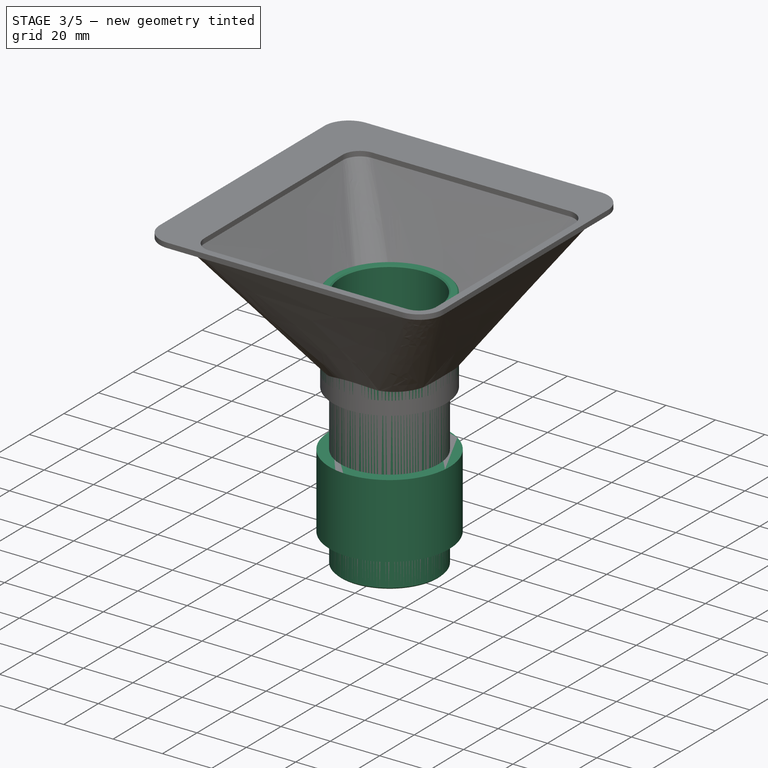
[diagram: stage 3 of 5 — iso view after this stage's code; geometry added in this stage tinted green]
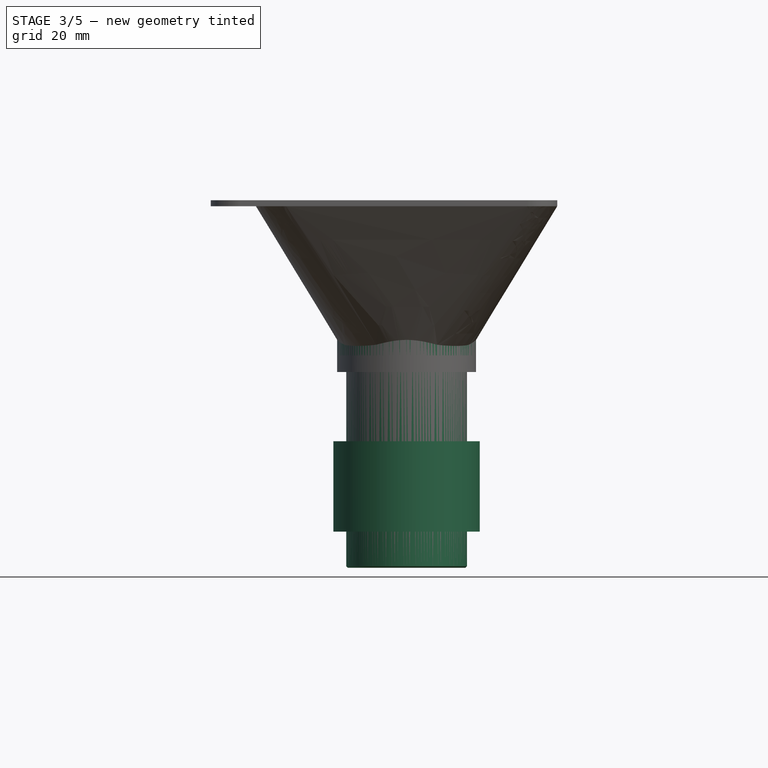
[diagram: stage 3 of 5 — front view after this stage's code; geometry added in this stage tinted green]
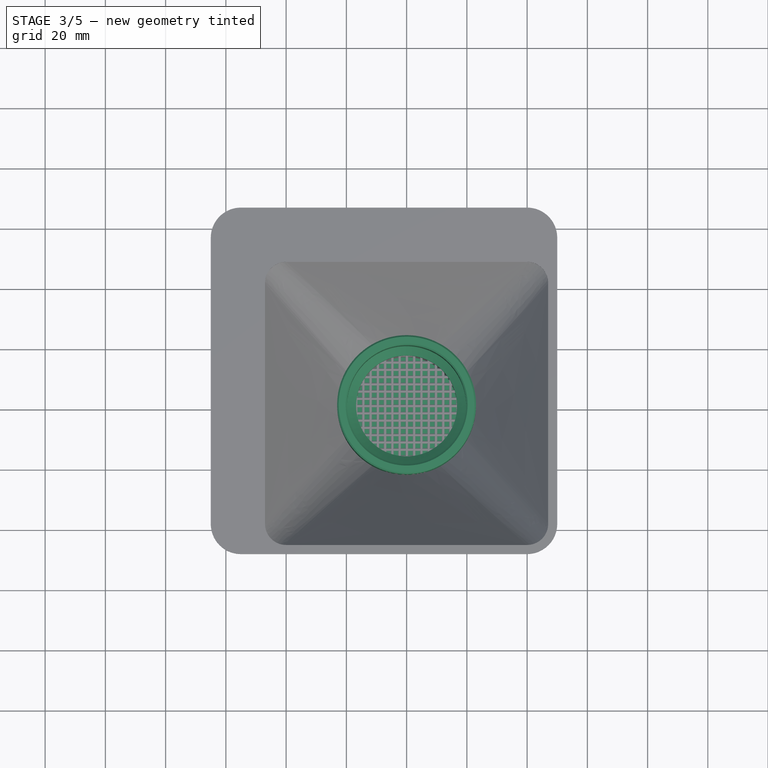
[diagram: stage 3 of 5 — top view after this stage's code; geometry added in this stage tinted green]
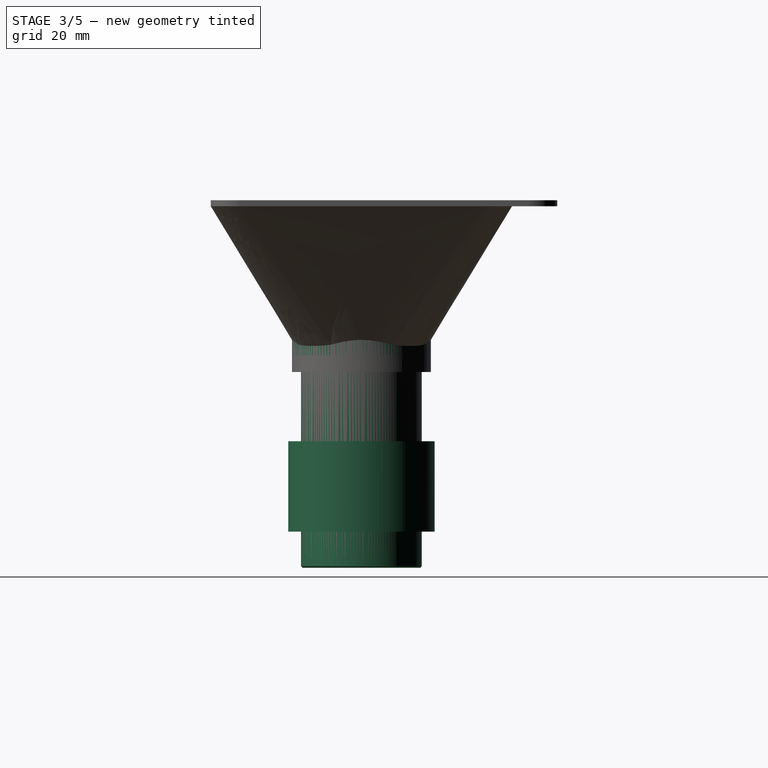
[diagram: stage 3 of 5 — right view after this stage's code; geometry added in this stage tinted green]
FEATURE [Spreadsheet::Sheet] Spreadsheet  label="dim"
  PythonMode = false
  ShowCells = 0
  TreeRank = 1
  cells = A1=layer_height; B1(layer_height)==0.2 mm; A2=extrusion_width; B2(extrusion_width)==0.5 mm; A4=inner_d_low; B4(inner_d_low)==33.5 mm; A5=inner_d_high; B5(inner_d_high)==36.5 mm; D5=outer_d_high; E5(outer_d_high)==inner_d_high + 2 * wall; A6=adapter_length; B6(adapter_length)==70 mm; A7=wall; B7(wall)==1.8 mm; A9=tool_mount_d_delta; B9(tool_mount_d_delta)==6 mm; D9=tool_mount_d; E9(tool_mount_d)==inner_d_low + tool_mount_d_delta; A10=tool_mount_length; B10(tool_mount_length)==25 mm; A11=tool_mount_slack; B11(tool_mount_slack)==0.25 mm; D11=tool_d; E11(tool_d)==tool_mount_d - tool_mount_slack; A12=tool_mount_fillet_angle; B12(tool_mount_fillet_angle)==40 deg; A13=tool_base_chamfer; B13(tool_base_chamfer)==1 mm; A14=tool_top_grab_thickness; B14(tool_top_grab_thickness)==5 mm; A15=tool_inset; B15(tool_inset)==2 mm; A17=large_tool_side; B17(large_tool_side)==100 mm; A18=large_tool_fillet; B18(large_tool_fillet)==10 mm; A19=large_tool_length; B19(large_tool_length)==50 mm; A20=large_tool_top_wall; B20(large_tool_top_wall)==3 mm; A21=large_tool_side_clamp_size; B21(large_tool_side_clamp_size)==15 mm; A23=sieve_hole; B23(sieve_hole)==1.5 mm; D23=num_holes; E23(num_holes)==round(inner_d_low / (sieve_hole + sieve_mesh)); A24=sieve_mesh; B24(sieve_mesh)==0.9 mm; D24=hole_offset; E24(hole_offset)==num_holes / 2 * (sieve_hole + sieve_mesh); A25=sieve_thickness; B25(sieve_thickness)==2 mm; A27=flange_d_delta; B27(flange_d_delta)==3 mm; D27=outer_d_flange; E27(outer_d_flange)==outer_d_high + flange_d_delta * 2; A28=flange_length; B28(flange_length)==30 mm; A30=mount_d_slack; B30(mount_d_slack)==0.5 mm; D30=mount_inner_d; E30(mount_inner_d)==<<dim>>.outer_d_high + mount_d_slack; A31=mount_wall; B31(mount_wall)==4 mm; D31=mount_outer_d; E31(mount_outer_d)==mount_inner_d + 2 * mount_wall; A32=mount_length; B32(mount_length)==30 mm; A33=mount_width; B33(mount_width)==120 mm; A34=mount_depth; B34(mount_depth)==60 mm; A35=mount_fillet; B35(mount_fillet)==5 mm; A36=mount_thickness; B36(mount_thickness)==5 mm; A38=mount_fins_width; B38(mount_fins_width)==8 mm; A39=mount_fins_distance; B39(mount_fins_distance)==18 mm; A41=mount_internal_hole_z_offset; B41(mount_internal_hole_z_offset)==1 mm; D41=mount_internal_hole_height; E41(mount_internal_hole_height)==mount_thickness - 2 * mount_internal_hole_z_offset; A42=mount_internal_hole_side_offset; B42(mount_internal_hole_side_offset)==6 mm; A43=mount_internal_hole_count; B43(mount_internal_hole_count)=5; A44=mount_internal_hole_distance; B44(mount_internal_hole_distance)==10 mm
FEATURE [Sketcher::SketchObject] Sketch003
  ArcFitTolerance = 1e-06
  AttachmentOffset = pos=(0,0,-28) rot=(0,0,1;0rad)
  AttachmentSupport = -> [XY_Plane001]
  ExternalBSplineMaxDegree = 5
  ExternalBSplineTolerance = 0.0001
  FixShape = 1
  FullyConstrained = false
  InternalTolerance = 1e-06
  InvalidShape = false
  MakeInternals = false
  MapMode = 5
  Placement = pos=(0,0,-28) rot=(0,0,1;0rad)
  Support = -> [XY_Plane001]
  TreeRank = 37
  ValidateShape = false
  expr: AttachmentOffset.Base.z = -<<dim>>.flange_length + <<dim>>.sieve_thickness
  expr: Constraints[0] = <<dim>>.mount_outer_d
  sketch-geometry (1):
    g0: Circle CenterX=0 CenterY=0 CenterZ=0 NormalX=0 NormalY=0 NormalZ=1 AngleXU=0 Radius=24.3
  constraints (1):
    c: Diameter(g0) = 48.6
FEATURE [PartDesign::Pad] Pad001
  AddSubType = 0
  AlongSketchNormal = false
  AutoTaperInnerAngle = true
  CheckUpToFaceLimits = true
  ClaimChildren = false
  Direction = (0,0,1)
  Fit = 0
  FitJoin = 0
  FixShape = 1
  InnerFit = 0
  InnerFitJoin = 0
  InvalidShape = false
  Length = 30
  Length2 = 10
  Linearize = true
  NewSolid = false
  Profile = -> Sketch003
  ReferenceAxis = -> Sketch003 [N_Axis]
  Refine = true
  Reversed = true
  Suppress = false
  TaperInnerAngle = 0
  TaperInnerAngleRev = 0
  TreeRank = 38
  Type = 0
  ValidateShape = false
  _ProfileBasedVersion = 1
  expr: Length = <<dim>>.mount_length
FEATURE [PartDesign::Body] Body001  label="mount"
  AutoGroupSolids = false
  ClaimAllChildren = false
  ExportMode = 0
  FixShape = 1
  Group = -> [Sketch003,Pad001,Sketch004,Pad002,Sketch005,Sketch006,Pad003,Sketch007,Pocket,Sketch008,Pad004,Fillet,Pocket001,Fillet001,Chamfer002,Fillet002,Chamfer003,Sketch009,Pocket002,LinearPattern001,LinearPattern]
  InvalidShape = false
  Origin = -> Origin001
  Tip = -> LinearPattern
  TreeRank = 36
  ValidateShape = false
  _ExportChildren = -> [Pad001,Pad002,Pad003,Pocket,Pad004,Fillet,Pocket001,Fillet001,Chamfer002,Fillet002,Chamfer003,Pocket002,LinearPattern001,LinearPattern]
  _GroupVersion = 1
FEATURE [Sketcher::SketchObject] Sketch010
  ArcFitTolerance = 1e-06
  AttachmentSupport = -> [YZ_Plane002]
  ExternalBSplineMaxDegree = 5
  ExternalBSplineTolerance = 0.0001
  FixShape = 1
  FullyConstrained = true
  InternalTolerance = 1e-06
  InvalidShape = false
  MakeInternals = false
  MapMode = 5
  Placement = pos=(0,0,0) rot=(0.57735,0.57735,0.57735;2.0944rad)
  Support = -> [YZ_Plane002]
  TreeRank = 71
  ValidateShape = false
  expr: Constraints[10] = <<dim>>.flange_length
  expr: Constraints[11] = <<dim>>.outer_d_flange / 2
  expr: Constraints[16] = -<<dim>>.adapter_length
  expr: Constraints[18] = <<dim>>.inner_d_low / 2
  expr: Constraints[20] = <<dim>>.tool_mount_d / 2
  expr: Constraints[25] = <<dim>>.tool_mount_length
  expr: Constraints[26] = -180 + <<dim>>.tool_mount_fillet_angle
  expr: Constraints[8] = <<dim>>.inner_d_high / 2
  expr: Constraints[9] = <<dim>>.outer_d_high / 2
  sketch-geometry (9):
    g0: LineSegment StartX=18.25 StartY=-70 StartZ=0 EndX=20.05 EndY=-70 EndZ=0
    g1: LineSegment StartX=20.05 StartY=-70 StartZ=0 EndX=20.05 EndY=0 EndZ=0
    g2: LineSegment StartX=20.05 StartY=0 StartZ=0 EndX=23.05 EndY=0 EndZ=0
    g3: LineSegment StartX=23.05 StartY=0 StartZ=0 EndX=23.05 EndY=30 EndZ=0
    g4: LineSegment StartX=23.05 StartY=30 StartZ=0 EndX=19.75 EndY=30 EndZ=0
    g5: LineSegment StartX=19.75 StartY=30 StartZ=0 EndX=19.75 EndY=7.5173 EndZ=0
    g6: LineSegment StartX=16.75 StartY=0 StartZ=0 EndX=18.25 EndY=-70 EndZ=0
    g7: LineSegment StartX=19.75 StartY=7.5173 StartZ=0 EndX=16.75 EndY=5 EndZ=0
    g8: LineSegment StartX=16.75 StartY=5 StartZ=0 EndX=16.75 EndY=0 EndZ=0
  constraints (27):
    c: Coincident(g0,g1)
    c: PointOnObject(g1,g-1)
    c: Coincident(g1,g2)
    c: PointOnObject(g2,g-1)
    c: Coincident(g2,g3)
    c: Vertical(g3)
    c: Vertical(g1)
    c: Horizontal(g0)
    c: DistanceX(g0) = 18.25
    c: DistanceX(g0) = 20.05
    c: DistanceY(g3,g3) = 30
    c: DistanceX(g3) = 23.05
    c: Coincident(g3,g4)
    c: Coincident(g4,g5)
    c: Vertical(g5)
    c: Coincident(g6,g0)
    c: DistanceY(g0) = -70
    c: Horizontal(g-1,g6)
    c: DistanceX(g6) = 16.75
    c: Horizontal(g4)
    c: DistanceX(g4) = 19.75
    c: Coincident(g7,g5)
    c: Coincident(g8,g7)
    c: Coincident(g8,g6)
    c: Vertical(g8)
    c: DistanceY(g7,g4) = 25
    c: Angle(g7) = -2.44346
FEATURE [PartDesign::Revolution] Revolution
  AddSubType = 0
  Angle = 360
  Axis = (-2e-16,3e-16,1)
  Base = (0,0,0)
  ClaimChildren = false
  Fit = 0
  FitJoin = 0
  FixShape = 1
  InnerFit = 0
  InnerFitJoin = 0
  InvalidShape = false
  Linearize = true
  NewSolid = false
  Profile = -> Sketch010
  ReferenceAxis = -> Sketch010 [V_Axis]
  Refine = true
  Reversed = true
  Suppress = false
  TreeRank = 72
  ValidateShape = false
  _ProfileBasedVersion = 1
FEATURE [PartDesign::Chamfer] Chamfer
  AddSubType = 0
  Angle = 45
  Base = -> Revolution [Edge7,Edge2,Edge5,Edge8]
  BaseFeature = -> Revolution
  ChamferType = 0
  FixShape = 1
  FlipDirection = false
  InvalidShape = false
  NewSolid = false
  Refine = true
  Size = 0.5
  Size2 = 1
  SupportTransform = false
  Suppress = false
  TreeRank = 73
  UseAllEdges = false
  ValidateShape = false
FEATURE [Sketcher::SketchObject] Sketch013
  ArcFitTolerance = 1e-06
  AttachmentSupport = -> [XY_Plane003]
  ExternalBSplineMaxDegree = 5
  ExternalBSplineTolerance = 0.0001
  FixShape = 1
  FullyConstrained = true
  InternalTolerance = 1e-06
  InvalidShape = false
  MakeInternals = false
  MapMode = 5
  Support = -> [XY_Plane003]
  TreeRank = 106
  ValidateShape = false
  expr: Constraints[2] = <<dim>>.inner_d_low
  expr: Constraints[3] = <<dim>>.inner_d_low * 2
  sketch-geometry (2):
    g0: Circle CenterX=0 CenterY=0 CenterZ=0 NormalX=0 NormalY=0 NormalZ=1 AngleXU=0 Radius=16.75
    g1: Circle CenterX=0 CenterY=0 CenterZ=0 NormalX=0 NormalY=0 NormalZ=1 AngleXU=0 Radius=33.5
  constraints (4):
    c: Coincident(g0,g-1)
    c: Coincident(g1,g0)
    c: Diameter(g0) = 33.5
    c: Diameter(g1) = 67
FEATURE [PartDesign::Chamfer] Chamfer004
  AddSubType = 0
  Angle = 45
  Base = -> Revolution001 [Edge8,Edge7]
  BaseFeature = -> Revolution001
  ChamferType = 0
  FixShape = 1
  FlipDirection = false
  InvalidShape = false
  NewSolid = false
  Refine = true
  Size = 0.5
  Size2 = 1
  SupportTransform = false
  Suppress = false
  TreeRank = 108
  UseAllEdges = false
  ValidateShape = false
FEATURE [PartDesign::Body] Body003  label="sieve"
  AutoGroupSolids = false
  ClaimAllChildren = false
  ExportMode = 0
  FixShape = 1
  Group = -> [Sketch011,Pad,Sketch013,Sketch014,Pad005,LinearArray,LatticePattern,LinearArray001,LatticePattern001,Pocket003]
  InvalidShape = false
  Origin = -> Origin003
  Tip = -> Pocket003
  TreeRank = 99
  ValidateShape = false
  _ExportChildren = -> [Pad,Pad005,LatticePattern,LatticePattern001,Pocket003]
  _GroupVersion = 1
  expr: Placement.Base.z = <<tool_base>>.Placement.Base.z
FEATURE [Sketcher::SketchObject] Sketch015
  ArcFitTolerance = 1e-06
  AttachmentSupport = -> [YZ_Plane004]
  ExternalBSplineMaxDegree = 5
  ExternalBSplineTolerance = 0.0001
  FixShape = 1
  FullyConstrained = true
  InternalTolerance = 1e-06
  InvalidShape = false
  MakeInternals = false
  MapMode = 5
  Placement = pos=(0,0,0) rot=(0.57735,0.57735,0.57735;2.0944rad)
  Support = -> [YZ_Plane004]
  TreeRank = 130
  ValidateShape = false
  expr: Constraints[13] = <<dim>>.tool_base_chamfer
  expr: Constraints[6] = <<dim>>.tool_d / 2
  expr: Constraints[7] = <<dim>>.tool_mount_fillet_angle
  expr: Constraints[8] = <<dim>>.inner_d_low / 2
  expr: Constraints[9] = <<dim>>.tool_mount_length - <<dim>>.tool_inset
  sketch-geometry (7):
    g0: LineSegment [constr] StartX=16.75 StartY=-23 StartZ=0 EndX=19.625 EndY=-20.5876 EndZ=0
    g1: LineSegment StartX=19.625 StartY=-20.5876 StartZ=0 EndX=19.625 EndY=0 EndZ=0
    g2: LineSegment StartX=19.625 StartY=0 StartZ=0 EndX=16.75 EndY=0 EndZ=0
    g3: LineSegment [constr] StartX=16.75 StartY=0 StartZ=0 EndX=16.75 EndY=-23 EndZ=0
    g4: LineSegment StartX=16.75 StartY=-22.1609 StartZ=0 EndX=17.75 EndY=-22.1609 EndZ=0
    g5: LineSegment StartX=17.75 StartY=-22.1609 StartZ=0 EndX=19.625 EndY=-20.5876 EndZ=0
    g6: LineSegment StartX=16.75 StartY=-22.1609 StartZ=0 EndX=16.75 EndY=0 EndZ=0
  constraints (20):
    c: Coincident(g0,g1)
    c: Vertical(g1)
    c: Horizontal(g2)
    c: Coincident(g2,g3)
    c: Coincident(g3,g0)
    c: Vertical(g3)
    c: DistanceX(g0) = 19.625
    c: Angle(g0) = 0.698132
    c: DistanceX(g0) = 16.75
    c: DistanceY(g0,g1) = 23
    c: PointOnObject(g4,g3)
    c: PointOnObject(g4,g0)
    c: Horizontal(g4)
    c: DistanceX(g4,g4) = 1
    c: Coincident(g5,g4)
    c: Coincident(g5,g1)
    c: Coincident(g6,g4)
    c: Coincident(g6,g2)
    c: Horizontal(g-1,g2)
    c: Coincident(g1,g2)
FEATURE [PartDesign::Revolution] Revolution002
  AddSubType = 0
  Angle = 360
  Axis = (-2e-16,3e-16,1)
  Base = (0,0,0)
  ClaimChildren = false
  Fit = 0
  FitJoin = 0
  FixShape = 1
  InnerFit = 0
  InnerFitJoin = 0
  InvalidShape = false
  Linearize = true
  NewSolid = false
  Profile = -> Sketch015
  ReferenceAxis = -> Sketch015 [V_Axis]
  Refine = true
  Reversed = true
  Suppress = false
  TreeRank = 131
  ValidateShape = false
  _ProfileBasedVersion = 1
FEATURE [PartDesign::Chamfer] Chamfer005
  AddSubType = 0
  Angle = 45
  Base = -> Revolution002 [Edge6]
  BaseFeature = -> Revolution002
  ChamferType = 0
  FixShape = 1
  FlipDirection = false
  InvalidShape = false
  NewSolid = false
  Refine = true
  Size = 0.5
  Size2 = 1
  SupportTransform = false
  Suppress = false
  TreeRank = 132
  UseAllEdges = false
  ValidateShape = false
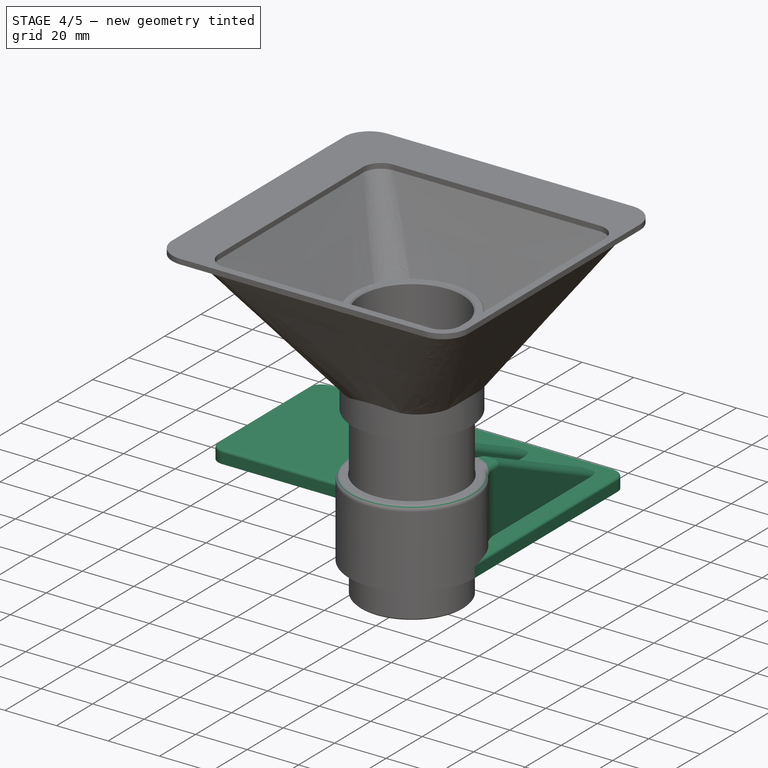
[diagram: stage 4 of 5 — iso view after this stage's code; geometry added in this stage tinted green]
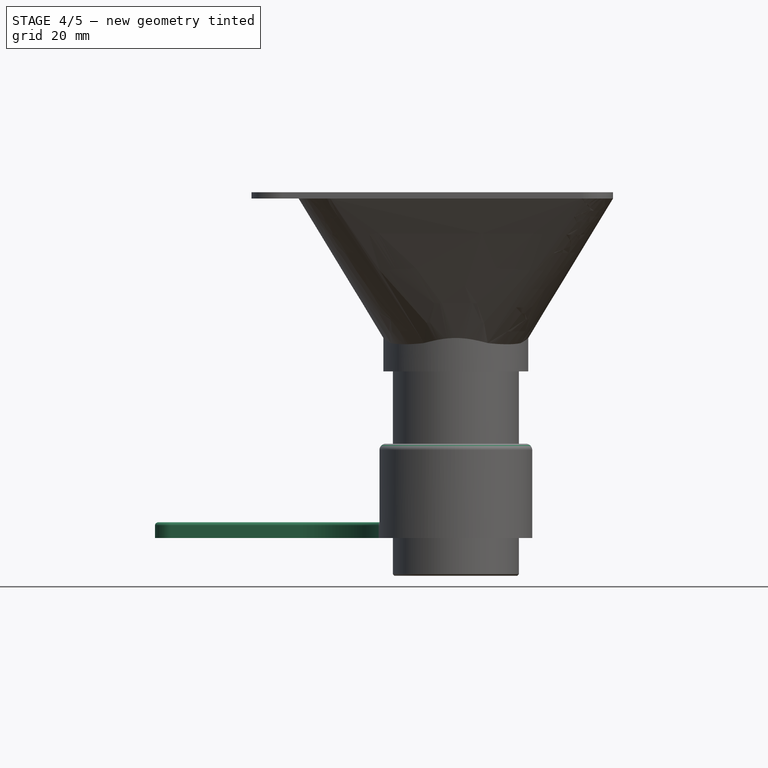
[diagram: stage 4 of 5 — front view after this stage's code; geometry added in this stage tinted green]
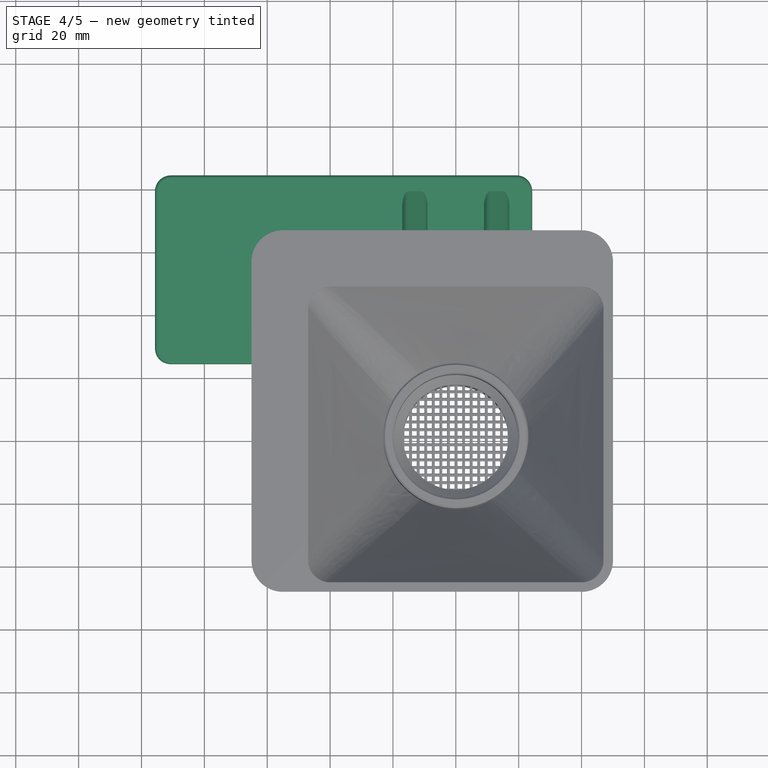
[diagram: stage 4 of 5 — top view after this stage's code; geometry added in this stage tinted green]
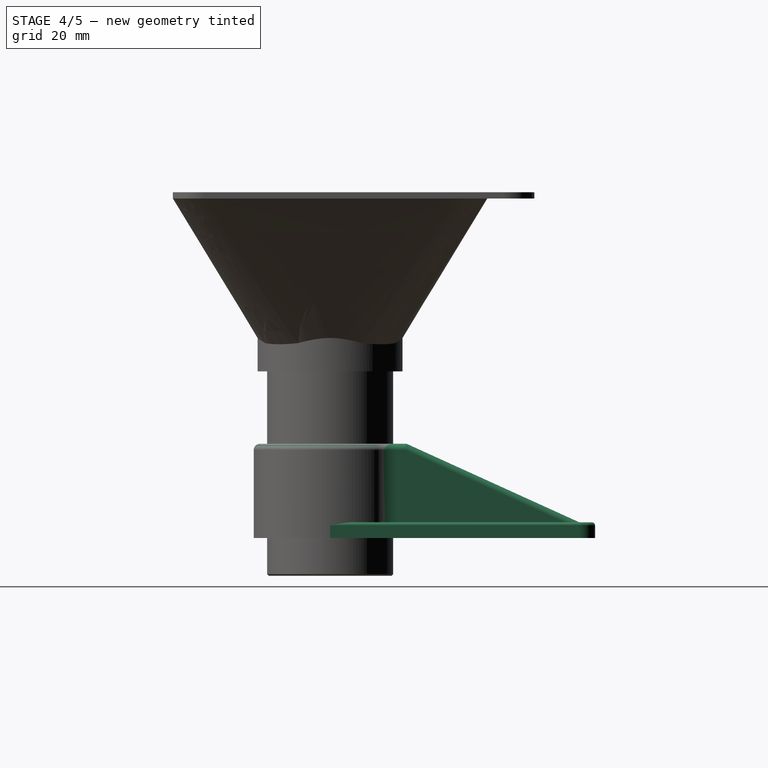
[diagram: stage 4 of 5 — right view after this stage's code; geometry added in this stage tinted green]
FEATURE [Sketcher::SketchObject] Sketch004
  ArcFitTolerance = 1e-06
  AttachmentOffset = pos=(0,0,-25) rot=(0,0,1;0rad)
  AttachmentSupport = -> [Sketch003]
  ExternalBSplineMaxDegree = 5
  ExternalBSplineTolerance = 0.0001
  ExternalGeometry = -> [Sketch003]
  FixShape = 1
  FullyConstrained = false
  InternalTolerance = 1e-06
  InvalidShape = false
  MakeInternals = false
  MapMode = 2
  Placement = pos=(0,0,-53) rot=(0,0,1;0rad)
  Support = -> [Sketch003]
  TreeRank = 39
  ValidateShape = false
  expr: AttachmentOffset.Base.z = -<<dim>>.mount_length + <<dim>>.mount_thickness
  expr: Constraints[17] = <<dim>>.mount_fillet
  expr: Constraints[18] = <<dim>>.mount_width
  expr: Constraints[19] = <<dim>>.mount_depth
  sketch-geometry (9):
    g0: LineSegment StartX=24.3 StartY=0 StartZ=0 EndX=24.3 EndY=79.3 EndZ=0
    g1: ArcOfCircle CenterX=-48.6 CenterY=0 CenterZ=0 NormalX=0 NormalY=0 NormalZ=1 AngleXU=0 Radius=24.3 StartAngle=-1.30722e-11 EndAngle=1.5708
    g2: LineSegment StartX=19.3 StartY=84.3 StartZ=0 EndX=-90.7 EndY=84.3 EndZ=0
    g3: LineSegment StartX=-95.7 StartY=79.3 StartZ=0 EndX=-95.7 EndY=29.3 EndZ=0
    g4: LineSegment StartX=-48.6 StartY=24.3 StartZ=0 EndX=-90.7 EndY=24.3 EndZ=0
    g5: ArcOfCircle CenterX=-90.7 CenterY=29.3 CenterZ=0 NormalX=0 NormalY=0 NormalZ=1 AngleXU=0 Radius=5 StartAngle=3.14159 EndAngle=4.71239
    g6: ArcOfCircle CenterX=-90.7 CenterY=79.3 CenterZ=0 NormalX=0 NormalY=0 NormalZ=1 AngleXU=0 Radius=5 StartAngle=1.5708 EndAngle=3.14159
    g7: ArcOfCircle CenterX=19.3 CenterY=79.3 CenterZ=0 NormalX=0 NormalY=0 NormalZ=1 AngleXU=0 Radius=5 StartAngle=-9e-16 EndAngle=1.5708
    g8: ArcOfCircle CenterX=0 CenterY=0 CenterZ=0 NormalX=0 NormalY=0 NormalZ=1 AngleXU=0 Radius=24.3 StartAngle=3.14159 EndAngle=6.28319
  constraints (24):
    c: PointOnObject(g1,g-3)
    c: Vertical(g0)
    c: Horizontal(g0,g-3)
    c: PointOnObject(g1,g-1)
    c: Vertical(g1,g1)
    c: Horizontal(g2)
    c: Vertical(g3)
    c: Coincident(g4,g1)
    c: Horizontal(g4)
    c: Tangent(g6,g2) = -1.5708
    c: Tangent(g6,g3) = -1.5708
    c: Tangent(g5,g3) = -1.5708
    c: Tangent(g5,g4) = 1.5708
    c: Tangent(g7,g0) = -1.5708
    c: Tangent(g7,g2) = -1.5708
    c: Equal(g7,g6)
    c: Equal(g6,g5)
    c: Radius(g5) = 5
    c: DistanceX(g3,g0) = 120
    c: DistanceY(g4,g2) = 60
    c: Coincident(g8,g1)
    c: Coincident(g8,g0)
    c: Coincident(g8,g-3)
    c: Equal(g1,g8)
FEATURE [PartDesign::Pad] Pad002
  AddSubType = 0
  AlongSketchNormal = false
  AutoTaperInnerAngle = true
  BaseFeature = -> Pad001
  CheckUpToFaceLimits = true
  ClaimChildren = false
  Direction = (0,0,1)
  Fit = 0
  FitJoin = 0
  FixShape = 1
  InnerFit = 0
  InnerFitJoin = 0
  InvalidShape = false
  Length = 5
  Length2 = 10
  Linearize = true
  NewSolid = false
  Profile = -> Sketch004
  ReferenceAxis = -> Sketch004 [N_Axis]
  Refine = true
  Reversed = true
  Suppress = false
  TaperInnerAngle = 0
  TaperInnerAngleRev = 0
  TreeRank = 40
  Type = 0
  ValidateShape = false
  _ProfileBasedVersion = 1
  expr: Length = <<dim>>.mount_thickness
FEATURE [Sketcher::SketchObject] Sketch005
  ArcFitTolerance = 1e-06
  AttachmentSupport = -> [XY_Plane001]
  ExternalBSplineMaxDegree = 5
  ExternalBSplineTolerance = 0.0001
  FixShape = 1
  FullyConstrained = true
  InternalTolerance = 1e-06
  InvalidShape = false
  MakeInternals = false
  MapMode = 5
  Support = -> [XY_Plane001]
  TreeRank = 41
  ValidateShape = false
  expr: Constraints[1] = <<dim>>.mount_inner_d
  sketch-geometry (1):
    g0: Circle CenterX=0 CenterY=0 CenterZ=0 NormalX=0 NormalY=0 NormalZ=1 AngleXU=0 Radius=20.3
  constraints (2):
    c: Coincident(g0,g-1)
    c: Diameter(g0) = 40.6
FEATURE [Sketcher::SketchObject] Sketch006
  ArcFitTolerance = 1e-06
  AttachmentSupport = -> [Sketch004]
  ExternalBSplineMaxDegree = 5
  ExternalBSplineTolerance = 0.0001
  ExternalGeometry = -> [Sketch004]
  FixShape = 1
  FullyConstrained = true
  InternalTolerance = 1e-06
  InvalidShape = false
  MakeInternals = false
  MapMode = 5
  Placement = pos=(0,0,-53) rot=(0,0,1;0rad)
  Support = -> [Sketch004]
  TreeRank = 42
  ValidateShape = false
  expr: Constraints[18] = <<dim>>.mount_fins_distance
  expr: Constraints[20] = <<dim>>.mount_fins_width
  sketch-geometry (8):
    g0: LineSegment StartX=-17 StartY=0 StartZ=0 EndX=-9 EndY=0 EndZ=0
    g1: LineSegment StartX=-9 StartY=0 StartZ=0 EndX=-9 EndY=79.3 EndZ=0
    g2: LineSegment StartX=-9 StartY=79.3 StartZ=0 EndX=-17 EndY=79.3 EndZ=0
    g3: LineSegment StartX=-17 StartY=79.3 StartZ=0 EndX=-17 EndY=0 EndZ=0
    g4: LineSegment StartX=9 StartY=0 StartZ=0 EndX=17 EndY=0 EndZ=0
    g5: LineSegment StartX=17 StartY=0 StartZ=0 EndX=17 EndY=79.3 EndZ=0
    g6: LineSegment StartX=17 StartY=79.3 StartZ=0 EndX=9 EndY=79.3 EndZ=0
    g7: LineSegment StartX=9 StartY=79.3 StartZ=0 EndX=9 EndY=0 EndZ=0
  constraints (23):
    c: Coincident(g0,g1)
    c: Coincident(g1,g2)
    c: Coincident(g2,g3)
    c: Coincident(g3,g0)
    c: Horizontal(g0)
    c: Horizontal(g2)
    c: Vertical(g1)
    c: Vertical(g3)
    c: PointOnObject(g0,g-1)
    c: Coincident(g4,g5)
    c: Coincident(g5,g6)
    c: Coincident(g6,g7)
    c: Coincident(g7,g4)
    c: Horizontal(g4)
    c: Horizontal(g6)
    c: Vertical(g5)
    c: Vertical(g7)
    c: Symmetric(g0,g4,g-1)
    c: DistanceX(g0,g4) = 18
    c: Equal(g0,g4)
    c: DistanceX(g4,g4) = 8
    c: Horizontal(g5,g-3)
    c: Horizontal(g1,g6)
FEATURE [PartDesign::Pad] Pad003
  AddSubType = 0
  AlongSketchNormal = false
  AutoTaperInnerAngle = true
  BaseFeature = -> Pad002
  CheckUpToFaceLimits = true
  ClaimChildren = false
  Direction = (0,0,1)
  Fit = 0
  FitJoin = 0
  FixShape = 1
  InnerFit = 0
  InnerFitJoin = 0
  InvalidShape = false
  Length = 25
  Length2 = 10
  Linearize = true
  NewSolid = false
  Profile = -> Sketch006
  ReferenceAxis = -> Sketch006 [N_Axis]
  Refine = true
  Suppress = false
  TaperInnerAngle = 0
  TaperInnerAngleRev = 0
  TreeRank = 43
  Type = 0
  ValidateShape = false
  _ProfileBasedVersion = 1
  expr: Length = <<dim>>.mount_length - <<dim>>.mount_thickness
FEATURE [Sketcher::SketchObject] Sketch007
  ArcFitTolerance = 1e-06
  AttachmentSupport = -> [YZ_Plane001]
  ExternalBSplineMaxDegree = 5
  ExternalBSplineTolerance = 0.0001
  ExternalGeometry = -> [Sketch003,Sketch004]
  FixShape = 1
  FullyConstrained = true
  InternalTolerance = 1e-06
  InvalidShape = false
  MakeInternals = false
  MapMode = 5
  Placement = pos=(0,0,0) rot=(0.57735,0.57735,0.57735;2.0944rad)
  Support = -> [YZ_Plane001]
  TreeRank = 44
  ValidateShape = false
  sketch-geometry (3):
    g0: LineSegment StartX=24.3 StartY=-28 StartZ=0 EndX=79.3 EndY=-53 EndZ=0
    g1: LineSegment StartX=24.3 StartY=-28 StartZ=0 EndX=79.3 EndY=-28 EndZ=0
    g2: LineSegment StartX=79.3 StartY=-28 StartZ=0 EndX=79.3 EndY=-53 EndZ=0
  constraints (7):
    c: Coincident(g0,g-3)
    c: Coincident(g0,g-4)
    c: Coincident(g1,g0)
    c: Horizontal(g1)
    c: Coincident(g2,g1)
    c: Coincident(g2,g0)
    c: Vertical(g2)
FEATURE [PartDesign::Pocket] Pocket
  AddSubType = 1
  AlongSketchNormal = false
  AutoTaperInnerAngle = true
  BaseFeature = -> Pad003
  CheckUpToFaceLimits = true
  ClaimChildren = false
  Direction = (-1,2e-16,-3e-16)
  Fit = 0
  FitJoin = 0
  FixShape = 1
  InnerFit = 0
  InnerFitJoin = 0
  InvalidShape = false
  Length = 5
  Length2 = 10
  Linearize = true
  Midplane = true
  NewSolid = false
  Profile = -> Sketch007
  ReferenceAxis = -> Sketch007 [N_Axis]
  Refine = true
  Suppress = false
  TaperInnerAngle = 0
  TaperInnerAngleRev = 0
  TreeRank = 45
  Type = 1
  ValidateShape = false
  _ProfileBasedVersion = 1
  _Version = 1
FEATURE [Sketcher::SketchObject] Sketch008
  ArcFitTolerance = 1e-06
  AttachmentSupport = -> [Pocket]
  ExternalBSplineMaxDegree = 5
  ExternalBSplineTolerance = 0.0001
  ExternalGeometry = -> [Pocket]
  FixShape = 1
  FullyConstrained = true
  InternalTolerance = 1e-06
  InvalidShape = false
  MakeInternals = false
  MapMode = 5
  Placement = pos=(0,-8.9e-15,-28) rot=(0,0,1;0rad)
  Support = -> [Pocket]
  TreeRank = 47
  ValidateShape = false
  sketch-geometry (8):
    g0: ArcOfCircle CenterX=-7.78378 CenterY=24.3 CenterZ=0 NormalX=0 NormalY=0 NormalZ=1 AngleXU=0 Radius=1.21622 StartAngle=3.14159 EndAngle=5.02238
    g1: ArcOfCircle CenterX=7.78378 CenterY=24.3 CenterZ=0 NormalX=0 NormalY=0 NormalZ=1 AngleXU=0 Radius=1.21622 StartAngle=4.4024 EndAngle=6.28319
    g2: ArcOfCircle CenterX=-27 CenterY=21.154 CenterZ=0 NormalX=0 NormalY=0 NormalZ=1 AngleXU=0 Radius=10 StartAngle=5.6186 EndAngle=6.28319
    g3: ArcOfCircle CenterX=27 CenterY=21.154 CenterZ=0 NormalX=0 NormalY=0 NormalZ=1 AngleXU=0 Radius=10 StartAngle=3.14159 EndAngle=3.80618
    g4: LineSegment StartX=-17 StartY=21.154 StartZ=0 EndX=-9 EndY=24.3 EndZ=0
    g5: LineSegment StartX=-7.41277 StartY=23.1418 StartZ=0 EndX=7.41277 EndY=23.1418 EndZ=0
    g6: LineSegment StartX=9 StartY=24.3 StartZ=0 EndX=17 EndY=21.154 EndZ=0
    g7: LineSegment StartX=19.1283 StartY=14.9866 StartZ=0 EndX=-19.1283 EndY=14.9866 EndZ=0
  constraints (18):
    c: Tangent(g2,g-9) = 1.5708
    c: Tangent(g2,g-3) = 1.5708
    c: Tangent(g0,g-4) = 1.5708
    c: Tangent(g0,g-10) = 1.5708
    c: Tangent(g1,g-5) = 1.5708
    c: Tangent(g1,g-11) = 1.5708
    c: Tangent(g3,g-7) = 1.5708
    c: Tangent(g3,g-8) = 1.5708
    c: Equal(g2,g3)
    c: Radius(g3) = 10
    c: Coincident(g4,g2)
    c: Coincident(g4,g0)
    c: Coincident(g5,g0)
    c: Coincident(g5,g1)
    c: Coincident(g6,g1)
    c: Coincident(g6,g3)
    c: Coincident(g7,g3)
    c: Coincident(g7,g2)
FEATURE [PartDesign::Pad] Pad004
  AddSubType = 0
  AlongSketchNormal = false
  AutoTaperInnerAngle = true
  BaseFeature = -> Pocket
  CheckUpToFaceLimits = true
  ClaimChildren = false
  Direction = (0,3e-16,1)
  Fit = 0
  FitJoin = 0
  FixShape = 1
  InnerFit = 0
  InnerFitJoin = 0
  InvalidShape = false
  Length = 10
  Length2 = 10
  Linearize = true
  NewSolid = false
  Profile = -> Sketch008
  ReferenceAxis = -> Sketch008 [N_Axis]
  Refine = true
  Suppress = false
  TaperInnerAngle = 0
  TaperInnerAngleRev = 0
  TreeRank = 48
  Type = 3
  UpToFace = -> Pocket [Face19]
  ValidateShape = false
  _ProfileBasedVersion = 1
FEATURE [PartDesign::Fillet] Fillet
  AddSubType = 0
  Base = -> Pad004 [Edge58,Edge40,Edge45,Edge47,Edge52,Edge57]
  BaseFeature = -> Pad004
  FixShape = 1
  InvalidShape = false
  NewSolid = false
  Radius = 2
  Refine = true
  SupportTransform = false
  Suppress = false
  TreeRank = 49
  UseAllEdges = false
  ValidateShape = false
FEATURE [PartDesign::Pocket] Pocket001
  AddSubType = 1
  AlongSketchNormal = false
  AutoTaperInnerAngle = true
  BaseFeature = -> Fillet
  CheckUpToFaceLimits = true
  ClaimChildren = false
  Direction = (0,0,-1)
  Fit = 0
  FitJoin = 0
  FixShape = 1
  InnerFit = 0
  InnerFitJoin = 0
  InvalidShape = false
  Length = 5
  Length2 = 10
  Linearize = true
  Midplane = true
  NewSolid = false
  Profile = -> Sketch005
  ReferenceAxis = -> Sketch005 [N_Axis]
  Refine = true
  Suppress = false
  TaperInnerAngle = 0
  TaperInnerAngleRev = 0
  TreeRank = 50
  Type = 1
  ValidateShape = false
  _ProfileBasedVersion = 1
  _Version = 1
FEATURE [PartDesign::Fillet] Fillet001
  AddSubType = 0
  Base = -> Pocket001 [Edge33]
  BaseFeature = -> Pocket001
  FixShape = 1
  InvalidShape = false
  NewSolid = false
  Radius = 1
  Refine = true
  SupportTransform = false
  Suppress = false
  TreeRank = 51
  UseAllEdges = false
  ValidateShape = false
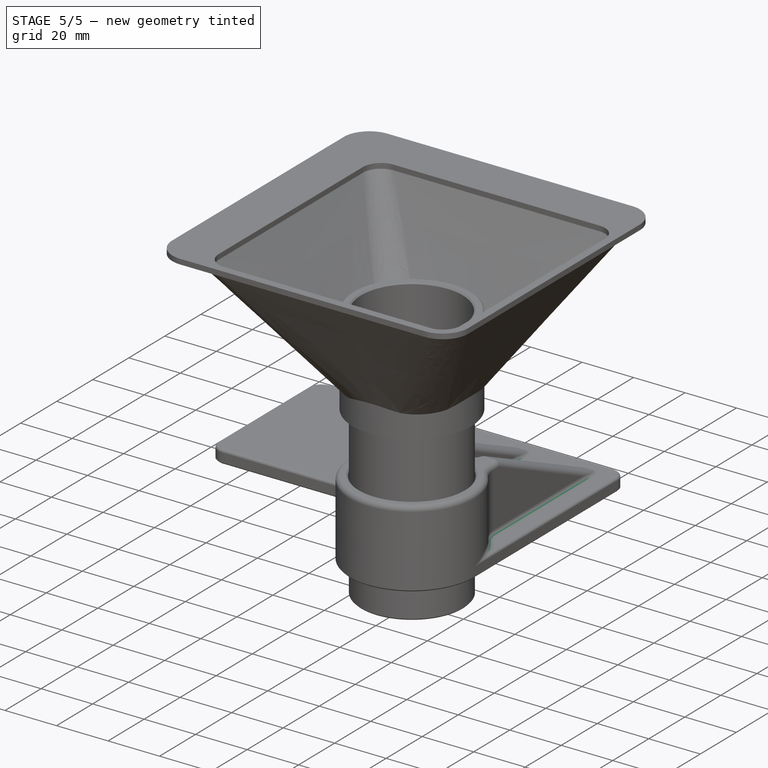
[diagram: stage 5 of 5 — iso view after this stage's code; geometry added in this stage tinted green]
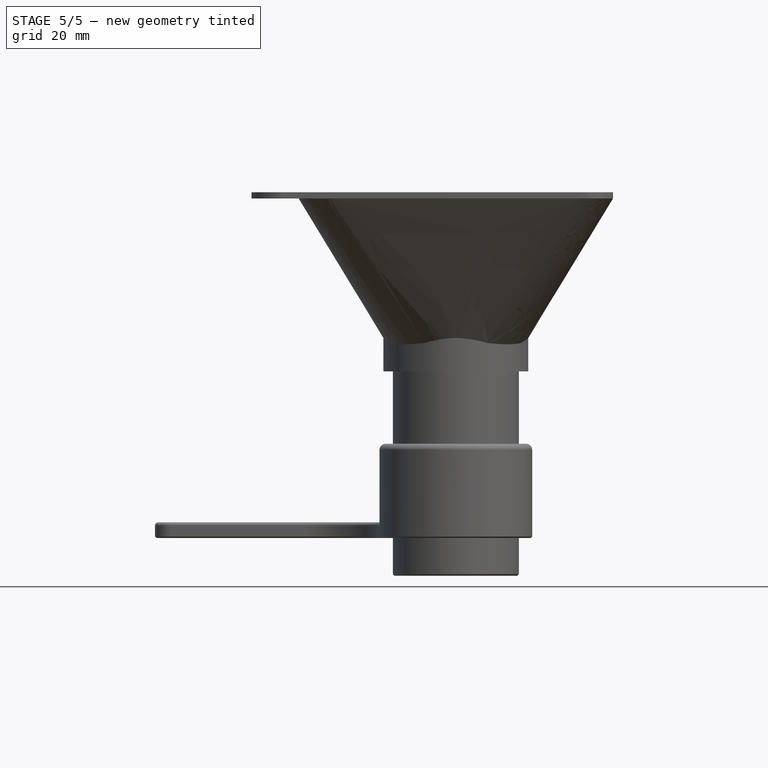
[diagram: stage 5 of 5 — front view after this stage's code; geometry added in this stage tinted green]
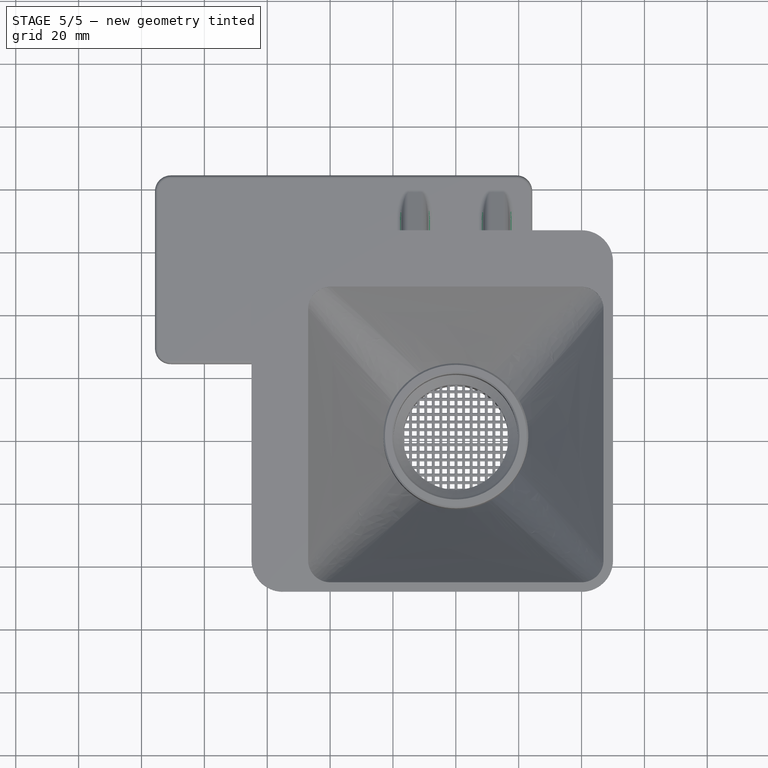
[diagram: stage 5 of 5 — top view after this stage's code; geometry added in this stage tinted green]
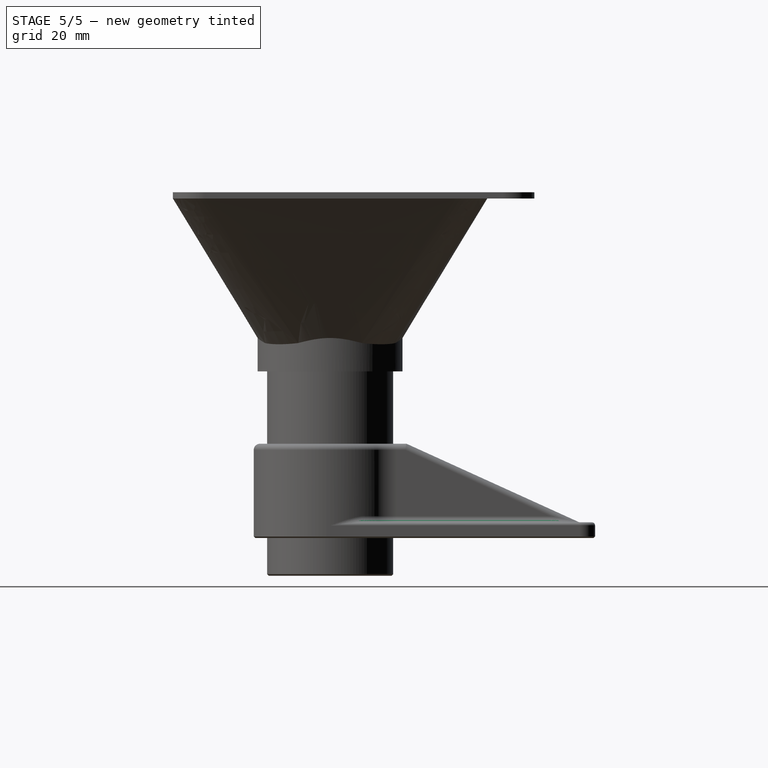
[diagram: stage 5 of 5 — right view after this stage's code; geometry added in this stage tinted green]
FEATURE [PartDesign::Chamfer] Chamfer002
  AddSubType = 0
  Angle = 45
  Base = -> Fillet001 [Edge51]
  BaseFeature = -> Fillet001
  ChamferType = 0
  FixShape = 1
  FlipDirection = false
  InvalidShape = false
  NewSolid = false
  Refine = true
  Size = 0.5
  Size2 = 1
  SupportTransform = false
  Suppress = false
  TreeRank = 52
  UseAllEdges = false
  ValidateShape = false
FEATURE [PartDesign::Fillet] Fillet002
  AddSubType = 0
  Base = -> Chamfer002 [Edge44]
  BaseFeature = -> Chamfer002
  FixShape = 1
  InvalidShape = false
  NewSolid = false
  Radius = 2
  Refine = true
  SupportTransform = false
  Suppress = false
  TreeRank = 53
  UseAllEdges = false
  ValidateShape = false
FEATURE [PartDesign::Chamfer] Chamfer003
  AddSubType = 0
  Angle = 45
  Base = -> Fillet002 [Edge83,Edge103]
  BaseFeature = -> Fillet002
  ChamferType = 0
  FixShape = 1
  FlipDirection = false
  InvalidShape = false
  NewSolid = false
  Refine = true
  Size = 0.5
  Size2 = 1
  SupportTransform = false
  Suppress = false
  TreeRank = 54
  UseAllEdges = false
  ValidateShape = false
FEATURE [Sketcher::SketchObject] Sketch009
  ArcFitTolerance = 1e-06
  AttachmentOffset = pos=(0,0,-1) rot=(0,0,1;0rad)
  AttachmentSupport = -> [Sketch004]
  ExternalBSplineMaxDegree = 5
  ExternalBSplineTolerance = 0.0001
  ExternalGeometry = -> [Sketch004]
  FixShape = 1
  FullyConstrained = true
  InternalTolerance = 1e-06
  InvalidShape = false
  MakeInternals = false
  MapMode = 5
  Placement = pos=(0,0,-54) rot=(0,0,1;0rad)
  Support = -> [Sketch004]
  TreeRank = 55
  ValidateShape = false
  expr: AttachmentOffset.Base.z = -<<dim>>.mount_internal_hole_z_offset
  expr: Constraints[13] = <<dim>>.mount_internal_hole_side_offset
  expr: Constraints[14] = <<dim>>.mount_internal_hole_side_offset
  sketch-geometry (6):
    g0: LineSegment [constr] StartX=-95.7 StartY=54.3 StartZ=0 EndX=24.3 EndY=54.3 EndZ=0
    g1: LineSegment StartX=-89.7 StartY=54.35 StartZ=0 EndX=-89.7 EndY=54.25 EndZ=0
    g2: LineSegment StartX=-89.7 StartY=54.25 StartZ=0 EndX=18.3 EndY=54.25 EndZ=0
    g3: LineSegment StartX=18.3 StartY=54.25 StartZ=0 EndX=18.3 EndY=54.35 EndZ=0
    g4: LineSegment StartX=18.3 StartY=54.35 StartZ=0 EndX=-89.7 EndY=54.35 EndZ=0
    g5: GeomPoint [constr] X=-35.7 Y=54.3 Z=0
  constraints (16):
    c: PointOnObject(g0,g-4)
    c: Horizontal(g0)
    c: Symmetric(g-3,g-3,g0)
    c: Coincident(g1,g2)
    c: Coincident(g2,g3)
    c: Coincident(g3,g4)
    c: Coincident(g4,g1)
    c: Horizontal(g2)
    c: Horizontal(g4)
    c: Vertical(g1)
    c: Vertical(g3)
    c: Symmetric(g2,g1,g5)
    c: PointOnObject(g5,g0)
    c: DistanceX(g3,g0) = 6
    c: DistanceX(g0,g1) = 6
    c: DistanceY(g1,g1) = 0.1
FEATURE [PartDesign::Pocket] Pocket002
  AddSubType = 1
  AlongSketchNormal = false
  AutoTaperInnerAngle = true
  BaseFeature = -> Chamfer003
  CheckUpToFaceLimits = true
  ClaimChildren = false
  Direction = (0,0,-1)
  Fit = 0
  FitJoin = 0
  FixShape = 1
  InnerFit = 0
  InnerFitJoin = 0
  InvalidShape = false
  Length = 3
  Length2 = 10
  Linearize = true
  NewSolid = false
  Profile = -> Sketch009
  ReferenceAxis = -> Sketch009 [N_Axis]
  Refine = true
  Suppress = false
  TaperInnerAngle = 0
  TaperInnerAngleRev = 0
  TreeRank = 56
  Type = 0
  ValidateShape = false
  _ProfileBasedVersion = 1
  _Version = 1
  expr: Length = <<dim>>.mount_internal_hole_height
FEATURE [PartDesign::LinearPattern] LinearPattern001
  AddSubType = 0
  BaseFeature = -> Pocket002
  CopyShape = false
  Direction = -> Sketch009 [V_Axis]
  FixShape = 1
  InvalidShape = false
  Length = 24
  NewSolid = false
  Occurrences = 5
  OriginalSubs = -> [Pocket002]
  Originals = -> [Pocket002]
  ParallelTransform = true
  Refine = true
  Reversed = true
  SubTransform = true
  Suppress = false
  TreeRank = 58
  ValidateShape = false
  _Version = 3
  expr: Length = (<<dim>>.mount_internal_hole_count - 1) * <<dim>>.mount_internal_hole_side_offset
  expr: Occurrences = <<dim>>.mount_internal_hole_count
FEATURE [PartDesign::LinearPattern] LinearPattern
  AddSubType = 0
  BaseFeature = -> LinearPattern001
  CopyShape = false
  Direction = -> Sketch009 [V_Axis]
  FixShape = 1
  InvalidShape = false
  Length = 24
  NewSolid = false
  Occurrences = 5
  OriginalSubs = -> [Pocket002]
  Originals = -> [Pocket002]
  ParallelTransform = true
  Refine = true
  SubTransform = true
  Suppress = false
  TreeRank = 57
  ValidateShape = false
  _Version = 3
  expr: Length = (<<dim>>.mount_internal_hole_count - 1) * <<dim>>.mount_internal_hole_side_offset
  expr: Occurrences = <<dim>>.mount_internal_hole_count
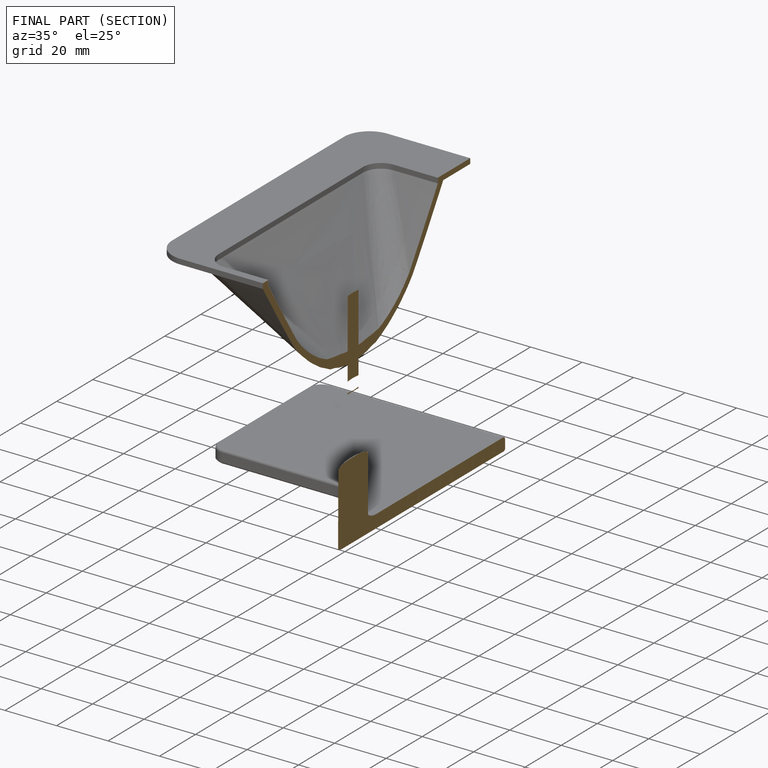
[diagram: finished part — half-section view (interior)]
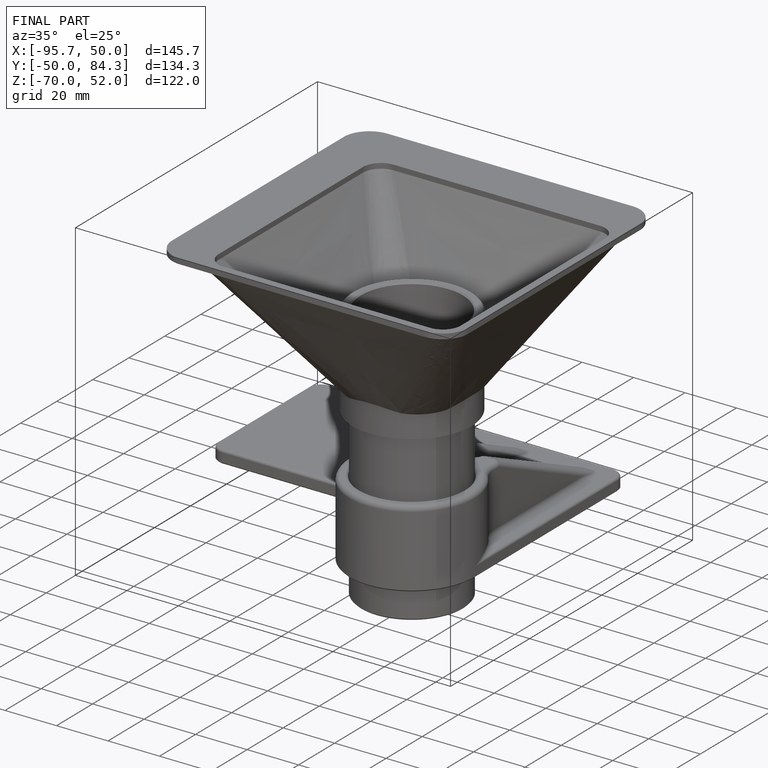
[diagram: finished part — iso view with bounding-box wireframe]
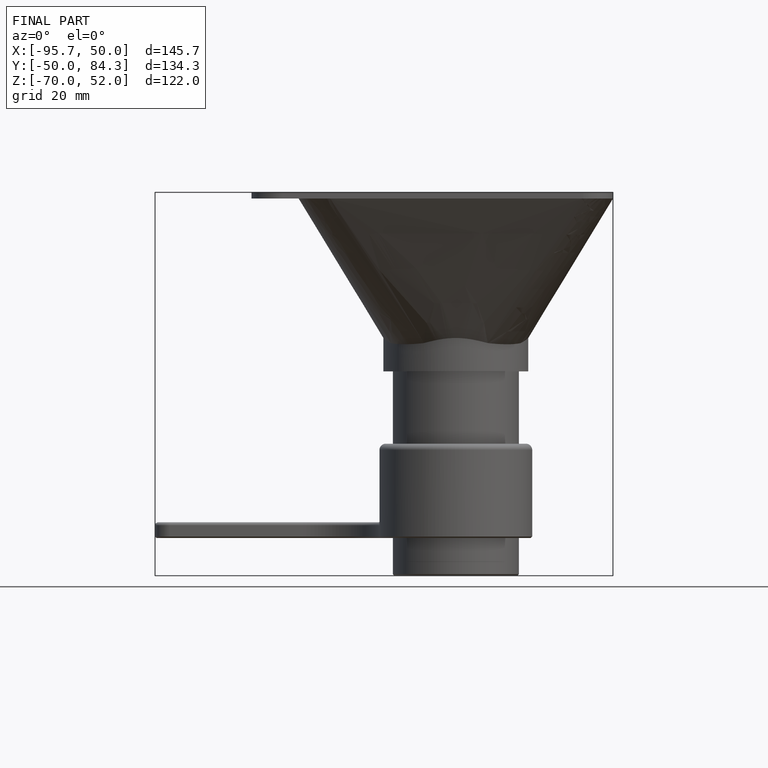
[diagram: finished part — front view with bounding-box wireframe]
